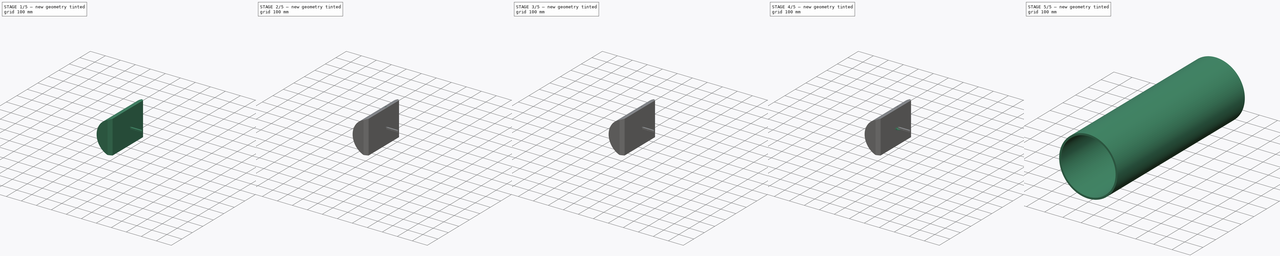
[diagram: build sequence overview — one tinted view per stage of 5, left to right]
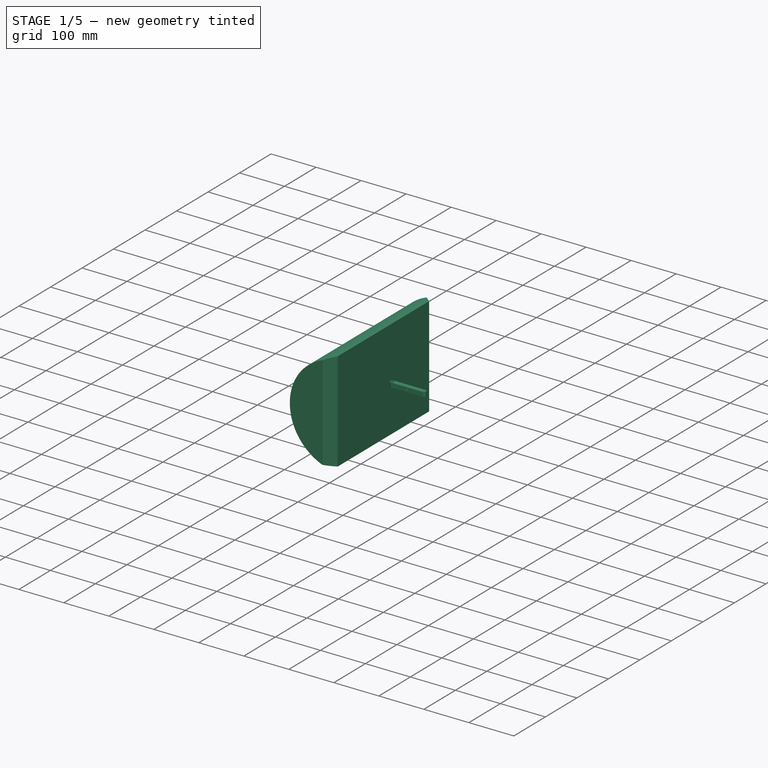
[diagram: stage 1 of 5 — iso view after this stage's code; geometry added in this stage tinted green]
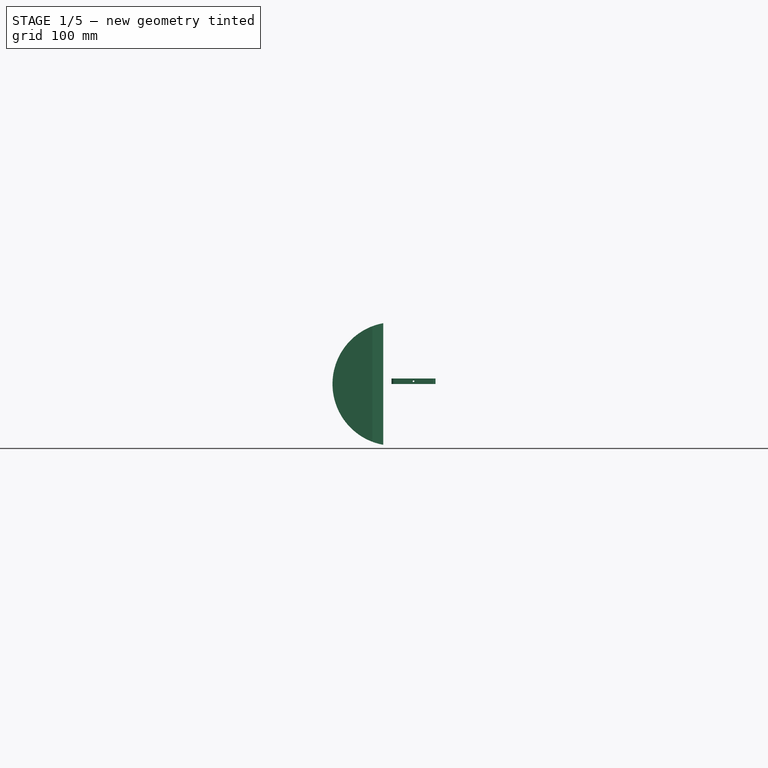
[diagram: stage 1 of 5 — front view after this stage's code; geometry added in this stage tinted green]
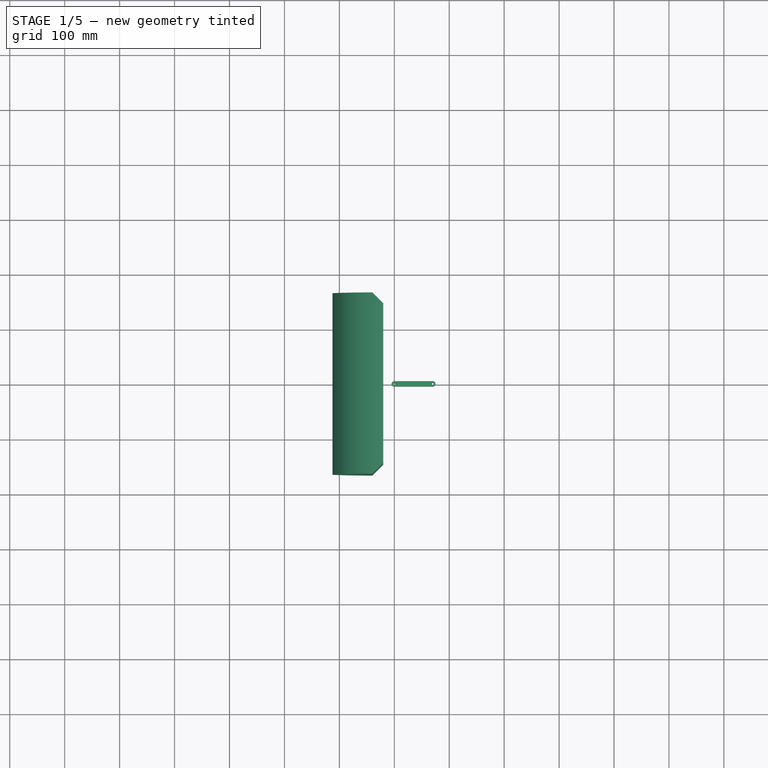
[diagram: stage 1 of 5 — top view after this stage's code; geometry added in this stage tinted green]
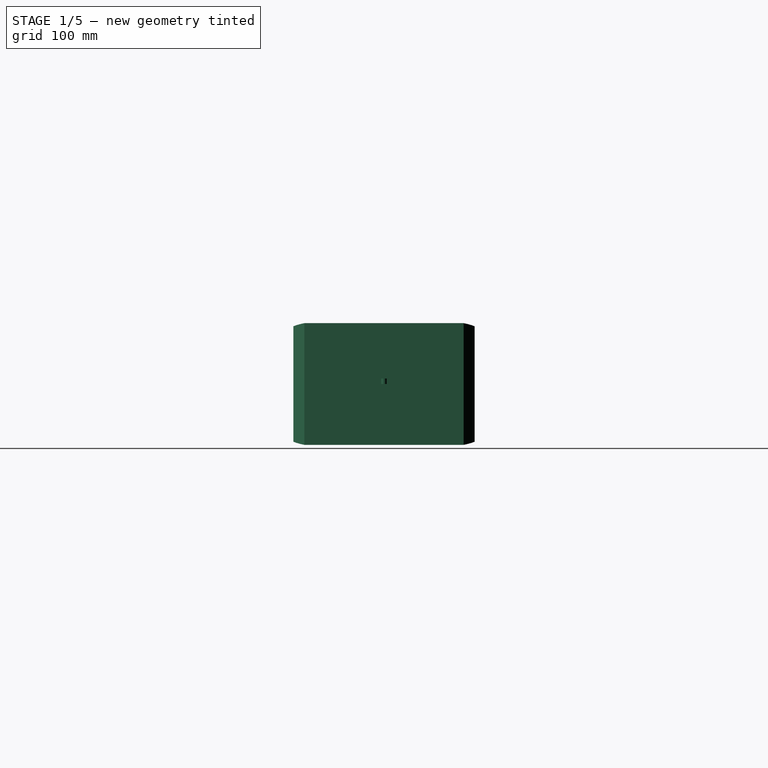
[diagram: stage 1 of 5 — right view after this stage's code; geometry added in this stage tinted green]
FCSTD DOCUMENT  (FreeCAD 2023.114R26244 +5346 (Git))
Label: Prototype_V1
License: All rights reserved
LicenseURL: http://en.wikipedia.org/wiki/All_rights_reserved
objects: App::FeaturePython×31, Part::FeaturePython×23, Sketcher::SketchObject×13, PartDesign::Pocket×9, App::Link×8, PartDesign::Pad×5, PartDesign::Chamfer×4, PartDesign::Body×4, PartDesign::PolarPattern×3, PartDesign::Hole×2, PartDesign::Mirrored×2, App::Part×2, Spreadsheet::Sheet×1, PartDesign::Thickness×1, PartDesign::Line×1, PartDesign::Revolution×1, Part::SubShapeBinder×1, PartDesign::Plane×1
note: 136 computed .brp shape members not serialized (recipe doc carries the construction recipe); baked Part::Feature solids carry a one-line shape summary decoded from their .brp

FEATURE [Sketcher::SketchObject] Sketch
  ArcFitTolerance = 1e-06
  AttachmentSupport = -> [XZ_Plane]
  ExternalBSplineMaxDegree = 5
  ExternalBSplineTolerance = 0.0001
  FullyConstrained = true
  InternalTolerance = 1e-06
  InvalidShape = false
  MakeInternals = true
  MapMode = 5
  Placement = pos=(0,0,0) rot=(1,0,0;1.5708rad)
  Support = -> [XZ_Plane]
  TreeRank = 11
  ValidateShape = true
  expr: Constraints[4] = -0.5 * <<V>>.gap_width
  expr: Constraints[5] = 0.75 * <<V>>.d_pipe * 0.5
  sketch-geometry (2):
    g0: ArcOfCircle CenterX=0 CenterY=0 CenterZ=0 NormalX=0 NormalY=0 NormalZ=1 AngleXU=0 Radius=112.5 StartAngle=1.74952 EndAngle=4.53366
    g1: LineSegment StartX=-20 StartY=110.708 StartZ=0 EndX=-20 EndY=-110.708 EndZ=0
  constraints (6):
    c: Coincident(g0,g-1)
    c: Coincident(g1,g0)
    c: Vertical(g1)
    c: Coincident(g0,g1)
    c: DistanceX(g-2,g0) = -20
    c: Radius(g0) = 112.5
FEATURE [PartDesign::Pad] Pad
  AddSubType = 0
  AlongSketchNormal = false
  AutoTaperInnerAngle = true
  CheckUpToFaceLimits = true
  ClaimChildren = false
  Direction = (0,-1,0)
  Fit = 0
  FitJoin = 0
  InnerFit = 0
  InnerFitJoin = 0
  InvalidShape = false
  Length = 330
  Length2 = 100
  Linearize = true
  Midplane = true
  NewSolid = false
  Profile = -> Sketch
  Refine = true
  Suppress = false
  TaperInnerAngle = 0
  TaperInnerAngleRev = 0
  TreeRank = 12
  Type = 0
  ValidateShape = true
  _ProfileBasedVersion = 1
  expr: Length = 1.1 * <<V>>.d_pipe
FEATURE [PartDesign::Chamfer] Chamfer
  AddSubType = 0
  Angle = 45
  Base = -> Pad [Edge6,Edge5]
  BaseFeature = -> Pad
  ChamferType = 0
  FlipDirection = false
  InvalidShape = false
  NewSolid = false
  Refine = true
  Size = 20
  Size2 = 1
  SupportTransform = false
  Suppress = false
  TreeRank = 13
  ValidateShape = true
FEATURE [PartDesign::Body] Body001  label="Pipe"
  AutoGroupSolids = false
  ClaimAllChildren = false
  ExportMode = 0
  Group = -> [Sketch007,Pad001,Thickness]
  InvalidShape = false
  Origin = -> Origin001
  Tip = -> Thickness
  TreeRank = 39
  ValidateShape = true
  _ExportChildren = -> [Pad001,Thickness]
  _GroupVersion = 1
FEATURE [Sketcher::SketchObject] Sketch008
  ArcFitTolerance = 1e-06
  AttachmentSupport = -> [XY_Plane002]
  ExternalBSplineMaxDegree = 5
  ExternalBSplineTolerance = 0.0001
  FullyConstrained = true
  InternalTolerance = 1e-06
  InvalidShape = false
  MakeInternals = true
  MapMode = 5
  Support = -> [XY_Plane002]
  TreeRank = 53
  ValidateShape = true
  sketch-geometry (6):
    g0: ArcOfCircle CenterX=0 CenterY=0 CenterZ=0 NormalX=0 NormalY=0 NormalZ=1 AngleXU=0 Radius=5 StartAngle=1.5708 EndAngle=4.71239
    g1: ArcOfCircle CenterX=70 CenterY=0 CenterZ=0 NormalX=0 NormalY=0 NormalZ=1 AngleXU=0 Radius=5 StartAngle=4.71239 EndAngle=7.85398
    g2: LineSegment StartX=-9e-16 StartY=-5 StartZ=0 EndX=70 EndY=-5 EndZ=0
    g3: LineSegment StartX=70 StartY=5 StartZ=0 EndX=0 EndY=5 EndZ=0
    g4: Circle CenterX=0 CenterY=0 CenterZ=0 NormalX=0 NormalY=0 NormalZ=1 AngleXU=0 Radius=1.5
    g5: Circle CenterX=70 CenterY=0 CenterZ=0 NormalX=0 NormalY=0 NormalZ=1 AngleXU=0 Radius=1.5
  constraints (13):
    c: Tangent(g0,g2) = -1.5708
    c: Tangent(g2,g1) = -1.5708
    c: Tangent(g1,g3) = -1.5708
    c: Tangent(g3,g0) = -1.5708
    c: Equal(g0,g1)
    c: Coincident(g0,g-1)
    c: PointOnObject(g1,g-1)
    c: Distance(g3) = 70
    c: Radius(g1) = 5
    c: Coincident(g4,g0)
    c: Coincident(g5,g1)
    c: Equal(g5,g4)
    c: Diameter(g4) = 3
FEATURE [PartDesign::Pad] Pad002
  AddSubType = 0
  AlongSketchNormal = false
  AutoTaperInnerAngle = true
  CheckUpToFaceLimits = true
  ClaimChildren = false
  Direction = (0,0,1)
  Fit = 0
  FitJoin = 0
  InnerFit = 0
  InnerFitJoin = 0
  InvalidShape = false
  Length = 10
  Length2 = 100
  Linearize = true
  NewSolid = false
  Profile = -> Sketch008
  Refine = true
  Suppress = false
  TaperInnerAngle = 0
  TaperInnerAngleRev = 0
  TreeRank = 54
  Type = 0
  ValidateShape = true
  _ProfileBasedVersion = 1
FEATURE [PartDesign::Body] Body  label="Main_body"
  AutoGroupSolids = false
  ClaimAllChildren = false
  ExportMode = 0
  Group = -> [Sketch,Pad,Chamfer,Sketch001,Pocket,Pocket001,Sketch003,Hole,Mirrored,Sketch004,Pocket002,Pocket003,Sketch006,Sketch005,Hole001,Sketch012,Pocket006,Chamfer003,PolarPattern002,Mirrored001]
  InvalidShape = false
  Origin = -> Origin
  Tip = -> Mirrored001
  TreeRank = 10
  ValidateShape = true
  _ExportChildren = -> [Pad,Chamfer,Pocket,Pocket001,Hole,Mirrored,Pocket002,Pocket003,Sketch005,Hole001,Pocket006,Chamfer003,PolarPattern002,Mirrored001]
  _GroupVersion = 1
FEATURE [PartDesign::Pocket] Pocket007
  AddSubType = 1
  AutoTaperInnerAngle = true
  BaseFeature = -> Pad002
  CheckUpToFaceLimits = true
  ClaimChildren = false
  Fit = 2
  FitJoin = 0
  InnerFit = 0
  InnerFitJoin = 0
  InvalidShape = false
  Length = 8
  Length2 = 100
  Linearize = true
  NewSolid = false
  Profile = -> Pad002 [Edge15]
  Refine = true
  Suppress = false
  TaperInnerAngle = 0
  TaperInnerAngleRev = 0
  TreeRank = 87
  Type = 0
  ValidateShape = true
  _ProfileBasedVersion = 1
  _Version = 1
FEATURE [Sketcher::SketchObject] Sketch013
  ArcFitTolerance = 1e-06
  AttachmentSupport = -> [Pocket007]
  ExternalBSplineMaxDegree = 5
  ExternalBSplineTolerance = 0.0001
  ExternalGeometry = -> [Pocket007]
  FullyConstrained = true
  InternalTolerance = 1e-06
  InvalidShape = false
  MakeInternals = true
  MapMode = 5
  Placement = pos=(0,5,0) rot=(0,0.707107,0.707107;3.14159rad)
  Support = -> [Pocket007]
  TreeRank = 88
  ValidateShape = true
  sketch-geometry (1):
    g0: Circle CenterX=-35 CenterY=5 CenterZ=0 NormalX=0 NormalY=0 NormalZ=1 AngleXU=0 Radius=1.5
  constraints (2):
    c: Diameter(g0) = 3
    c: Symmetric(g-3,g-1,g0)
FEATURE [PartDesign::Pocket] Pocket008
  AddSubType = 1
  AutoTaperInnerAngle = true
  BaseFeature = -> Pocket007
  CheckUpToFaceLimits = true
  ClaimChildren = false
  Fit = 0
  FitJoin = 0
  InnerFit = 0
  InnerFitJoin = 0
  InvalidShape = false
  Length = 5
  Length2 = 100
  Linearize = true
  NewSolid = false
  Profile = -> Sketch013
  Refine = true
  Suppress = false
  TaperInnerAngle = 0
  TaperInnerAngleRev = 0
  TreeRank = 89
  Type = 1
  ValidateShape = true
  _ProfileBasedVersion = 1
  _Version = 1
FEATURE [PartDesign::Body] Body002  label="Basic Link"
  AutoGroupSolids = false
  ClaimAllChildren = false
  ExportMode = 0
  Group = -> [Sketch008,Pad002,Pocket007,Sketch013,Pocket008]
  InvalidShape = false
  Origin = -> Origin002
  Tip = -> Pocket008
  TreeRank = 175
  ValidateShape = true
  _ExportChildren = -> [Pad002,Pocket007,Pocket008]
  _GroupVersion = 1
FEATURE [App::Part] Part  label="Wheel"
  ClaimAllChildren = false
  ExportMode = 1
  Group = -> [Body003]
  Origin = -> Origin004
  TreeRank = 107
  _ExportChildren = -> [Body003]
  _GroupVersion = 1
FEATURE [App::Part] Part001  label="Halve"
  ClaimAllChildren = false
  ExportMode = 1
  Group = -> [Body]
  Origin = -> Origin005
  TreeRank = 108
  _ExportChildren = -> [Body]
  _GroupVersion = 1
FEATURE [App::Link] Link  label="Link(Basic Link)"
  AutoLinkLabel = true
  AutoPlacement = true
  LinkPlacement = pos=(-112.903,80.78,107.791) rot=(-0.906438,0.263675,0.329917;3.33295rad)
  LinkedObject = -> Body002
  Placement = pos=(-112.903,80.78,107.791) rot=(-0.906438,0.263675,0.329917;3.33295rad)
  SyncGroupVisibility = false
  TreeRank = 111
  _LinkVersion = 1
FEATURE [App::Link] Link001  label="Link001(Wheel)"
  AutoLinkLabel = true
  AutoPlacement = true
  LinkPlacement = pos=(-109.689,80.78,111.621) rot=(0,1,0;0.698132rad)
  LinkedObject = -> Part
  Placement = pos=(-109.689,80.78,111.621) rot=(0,1,0;0.698132rad)
  SyncGroupVisibility = false
  TreeRank = 112
  _LinkVersion = 1
FEATURE [App::Link] Link002  label="Link002(Halve)"
  AutoLinkLabel = true
  AutoPlacement = true
  LinkedObject = -> Part001
  SyncGroupVisibility = false
  TreeRank = 113
  _LinkVersion = 1
FEATURE [App::Link] Link003  label="Link003(Wheel)"
  AutoLinkLabel = true
  AutoPlacement = true
  LinkedObject = -> Part
  SyncGroupVisibility = false
  TreeRank = 114
  _LinkVersion = 1
FEATURE [App::Link] Link004  label="Link004(*Wheel)"
  AutoLinkLabel = true
  AutoPlacement = true
  LinkedObject = -> Link003
  SyncGroupVisibility = false
  TreeRank = 115
  _LinkVersion = 1
FEATURE [App::Link] Link005  label="Link005(Basic Link)"
  AutoLinkLabel = true
  AutoPlacement = true
  LinkPlacement = pos=(-105.167,93.2437,-101.299) rot=(0.265294,-0.631142,-0.728889;1.0462rad)
  LinkedObject = -> Body002
  Placement = pos=(-105.167,93.2437,-101.299) rot=(0.265294,-0.631142,-0.728889;1.0462rad)
  SyncGroupVisibility = false
  TreeRank = 116
  _LinkVersion = 1
FEATURE [App::Link] Link006  label="Link006(*Basic Link)"
  AutoLinkLabel = true
  AutoPlacement = true
  LinkPlacement = pos=(-150.501,-79.9269,-4) rot=(0,0,1;0.416676rad)
  LinkedObject = -> Link005
  Placement = pos=(-150.501,-79.9269,-4) rot=(0,0,1;0.416676rad)
  SyncGroupVisibility = false
  TreeRank = 117
  _LinkVersion = 1
FEATURE [App::Link] Link007  label="Link007(*Basic Link)"
  AutoLinkLabel = true
  AutoPlacement = true
  LinkPlacement = pos=(-163.672,-79.9722,-4.00001) rot=(0,0,1;0.614806rad)
  LinkedObject = -> Link006
  Placement = pos=(-163.672,-79.9722,-4.00001) rot=(0,0,1;0.614806rad)
  SyncGroupVisibility = false
  TreeRank = 118
  _LinkVersion = 1
FEATURE [Part::FeaturePython] Parts  # WARN: FeaturePython — macro-defined, semantics opaque (R4)
  Group = -> [Link,Link001,Link002,Link003,Link004,Link005,Link006,Link007]
  GroupMode = 0
  InvalidShape = false
  TreeRank = 93
  ValidateShape = true
  _LinkVersion = 1
FEATURE [Part::FeaturePython] Assembly  # WARN: FeaturePython — macro-defined, semantics opaque (R4)
  AutoRelax = true
  BuildShape = 0
  Freeze = false
  Group = -> [Constraints,Elements,Parts]
  InvalidShape = false
  TreeRank = 90
  ValidateShape = true
  Verbose = false
  _LinkVersion = 1
  _SolverType = 1
  _Version = 1
FEATURE [App::FeaturePython] Constraints  # WARN: FeaturePython — macro-defined, semantics opaque (R4)
  Group = -> [Constraint,Constraint001,Constraint002,Constraint003,Constraint004,Constraint005,Constraint006,Constraint007,Constraint008,Constraint009]
  TreeRank = 91
  _LinkVersion = 1
  _Version = 1
FEATURE [App::FeaturePython] Elements  # WARN: FeaturePython — macro-defined, semantics opaque (R4)
  Group = -> [_Element,_Element001,_Element002,_Element003,_Element004,_Element005,_Element006,_Element007,_Element008,_Element009,_Element010,_Element011,_Element012,_Element013,_Element014,_Element015,_Element016,_Element017,_Element018,_Element019,_Element020]
  TreeRank = 92
  _LinkVersion = 1
FEATURE [App::FeaturePython] Constraint  label="Locked"  # WARN: FeaturePython — macro-defined, semantics opaque (R4)
  Disabled = false
  Group = -> [ElementLink]
  TreeRank = 119
  _ConstraintType = 0
  _LinkVersion = 1
  _Parent = -> Constraints
FEATURE [App::FeaturePython] ElementLink  label="_Element"  # link proxy (typed FeaturePython)
  LinkTransform = true
  LinkedObject = -> _Element
  TreeRank = 120
  _LinkVersion = 1
  _Parent = -> Constraint
FEATURE [Part::FeaturePython] _Element  # link proxy (typed FeaturePython)
  Detach = false
  InvalidShape = false
  LinkTransform = true
  LinkedObject = -> Link002 [Body.Mirrored001.Face2]
  TreeRank = 121
  ValidateShape = true
  _LinkVersion = 1
  _Parent = -> Elements
FEATURE [App::FeaturePython] Constraint001  label="AxialAlignment"  # WARN: FeaturePython — macro-defined, semantics opaque (R4)
  Angle = 0
  AnglePitch = 0
  AngleRoll = 0
  Disabled = false
  Group = -> [ElementLink001,ElementLink002]
  LockAngle = false
  Multiply = false
  TreeRank = 122
  _ConstraintType = 36
  _LinkVersion = 1
  _Parent = -> Constraints
FEATURE [App::FeaturePython] ElementLink001  label="_Element001"  # link proxy (typed FeaturePython)
  LinkTransform = true
  LinkedObject = -> _Element001
  TreeRank = 123
  _LinkVersion = 1
  _Parent = -> Constraint001
FEATURE [Part::FeaturePython] _Element001  # link proxy (typed FeaturePython)
  Detach = false
  InvalidShape = false
  LinkTransform = true
  LinkedObject = -> Link [Pocket008.Edge15]
  TreeRank = 124
  ValidateShape = true
  _LinkVersion = 1
  _Parent = -> Elements
FEATURE [App::FeaturePython] ElementLink002  label="_Element002"  # link proxy (typed FeaturePython)
  LinkTransform = true
  LinkedObject = -> _Element002
  TreeRank = 125
  _LinkVersion = 1
  _Parent = -> Constraint001
FEATURE [Part::FeaturePython] _Element002  # link proxy (typed FeaturePython)
  Detach = false
  InvalidShape = false
  LinkTransform = true
  LinkedObject = -> Link002 [Body.Mirrored001.Edge91]
  TreeRank = 126
  ValidateShape = true
  _LinkVersion = 1
  _Parent = -> Elements
FEATURE [App::FeaturePython] Constraint002  label="AxialAlignment001"  # WARN: FeaturePython — macro-defined, semantics opaque (R4)
  Angle = 0
  AnglePitch = 0
  AngleRoll = 0
  Disabled = false
  Group = -> [ElementLink003,ElementLink004]
  LockAngle = false
  Multiply = false
  TreeRank = 127
  _ConstraintType = 36
  _LinkVersion = 1
  _Parent = -> Constraints
FEATURE [App::FeaturePython] ElementLink003  label="_Element003"  # link proxy (typed FeaturePython)
  LinkTransform = true
  LinkedObject = -> _Element003
  TreeRank = 128
  _LinkVersion = 1
  _Parent = -> Constraint002
FEATURE [Part::FeaturePython] _Element003  # link proxy (typed FeaturePython)
  Detach = false
  InvalidShape = false
  LinkTransform = true
  LinkedObject = -> Link001 [Body003.Chamfer002.Edge133]
  TreeRank = 129
  ValidateShape = true
  _LinkVersion = 1
  _Parent = -> Elements
FEATURE [App::FeaturePython] ElementLink004  label="_Element004"  # link proxy (typed FeaturePython)
  LinkTransform = true
  LinkedObject = -> _Element004
  TreeRank = 130
  _LinkVersion = 1
  _Parent = -> Constraint002
FEATURE [Part::FeaturePython] _Element004  # link proxy (typed FeaturePython)
  Detach = false
  InvalidShape = false
  LinkTransform = true
  LinkedObject = -> Link [Pocket008.Edge17]
  TreeRank = 131
  ValidateShape = true
  _LinkVersion = 1
  _Parent = -> Elements
FEATURE [App::FeaturePython] Constraint003  label="PointInPlane"  # WARN: FeaturePython — macro-defined, semantics opaque (R4)
  Disabled = false
  Group = -> [ElementLink005,ElementLink006]
  TreeRank = 132
  _ConstraintType = 3
  _LinkVersion = 1
  _Parent = -> Constraints
FEATURE [App::FeaturePython] ElementLink005  label="_Element005"  # link proxy (typed FeaturePython)
  LinkTransform = true
  LinkedObject = -> _Element005
  TreeRank = 133
  _LinkVersion = 1
  _Parent = -> Constraint003
FEATURE [Part::FeaturePython] _Element005  # link proxy (typed FeaturePython)
  Detach = false
  InvalidShape = false
  LinkTransform = true
  LinkedObject = -> Link002 [Body.Mirrored001.Vertex23]
  TreeRank = 134
  ValidateShape = true
  _LinkVersion = 1
  _Parent = -> Elements
FEATURE [App::FeaturePython] ElementLink006  label="_Element006"  # link proxy (typed FeaturePython)
  LinkTransform = true
  LinkedObject = -> _Element006
  TreeRank = 135
  _LinkVersion = 1
  _Parent = -> Constraint003
FEATURE [Part::FeaturePython] _Element006  # link proxy (typed FeaturePython)
  Detach = false
  InvalidShape = false
  LinkTransform = true
  LinkedObject = -> Link [Pocket008.Face5]
  TreeRank = 136
  ValidateShape = true
  _LinkVersion = 1
  _Parent = -> Elements
FEATURE [App::FeaturePython] Constraint004  label="PointInPlane001"  # WARN: FeaturePython — macro-defined, semantics opaque (R4)
  Disabled = false
  Group = -> [ElementLink007,ElementLink008]
  TreeRank = 137
  _ConstraintType = 3
  _LinkVersion = 1
  _Parent = -> Constraints
FEATURE [App::FeaturePython] ElementLink007  label="_Element007"  # link proxy (typed FeaturePython)
  LinkTransform = true
  LinkedObject = -> _Element007
  TreeRank = 138
  _LinkVersion = 1
  _Parent = -> Constraint004
FEATURE [Part::FeaturePython] _Element007  # link proxy (typed FeaturePython)
  Detach = false
  InvalidShape = false
  LinkTransform = true
  LinkedObject = -> Link [Pocket008.Vertex1]
  TreeRank = 139
  ValidateShape = true
  _LinkVersion = 1
  _Parent = -> Elements
FEATURE [App::FeaturePython] ElementLink008  label="_Element008"  # link proxy (typed FeaturePython)
  LinkTransform = true
  LinkedObject = -> _Element008
  TreeRank = 140
  _LinkVersion = 1
  _Parent = -> Constraint004
FEATURE [Part::FeaturePython] _Element008  # link proxy (typed FeaturePython)
  Detach = false
  InvalidShape = false
  LinkTransform = true
  LinkedObject = -> Link001 [Body003.Chamfer002.Face47]
  TreeRank = 141
  ValidateShape = true
  _LinkVersion = 1
  _Parent = -> Elements
FEATURE [App::FeaturePython] Constraint005  label="AxialAlignment002"  # WARN: FeaturePython — macro-defined, semantics opaque (R4)
  Angle = 0
  AnglePitch = 0
  AngleRoll = 0
  Disabled = false
  Group = -> [ElementLink009,ElementLink010]
  LockAngle = false
  Multiply = false
  TreeRank = 142
  _ConstraintType = 36
  _LinkVersion = 1
  _Parent = -> Constraints
FEATURE [App::FeaturePython] ElementLink009  label="_Element009"  # link proxy (typed FeaturePython)
  LinkTransform = true
  LinkedObject = -> _Element009
  TreeRank = 143
  _LinkVersion = 1
  _Parent = -> Constraint005
FEATURE [Part::FeaturePython] _Element009  # link proxy (typed FeaturePython)
  Detach = false
  InvalidShape = false
  LinkTransform = true
  LinkedObject = -> Link002 [Body.Mirrored001.Edge101]
  TreeRank = 144
  ValidateShape = true
  _LinkVersion = 1
  _Parent = -> Elements
FEATURE [App::FeaturePython] ElementLink010  label="_Element010"  # link proxy (typed FeaturePython)
  LinkTransform = true
  LinkedObject = -> _Element010
  TreeRank = 145
  _LinkVersion = 1
  _Parent = -> Constraint005
FEATURE [Part::FeaturePython] _Element010  # link proxy (typed FeaturePython)
  Detach = false
  InvalidShape = false
  LinkTransform = true
  LinkedObject = -> Link005 [Pocket008.Edge18]
  TreeRank = 146
  ValidateShape = true
  _LinkVersion = 1
  _Parent = -> Elements
FEATURE [App::FeaturePython] Constraint006  label="PointInPlane002"  # WARN: FeaturePython — macro-defined, semantics opaque (R4)
  Disabled = false
  Group = -> [ElementLink011,ElementLink012]
  TreeRank = 147
  _ConstraintType = 3
  _LinkVersion = 1
  _Parent = -> Constraints
FEATURE [App::FeaturePython] ElementLink011  label="_Element011"  # link proxy (typed FeaturePython)
  LinkTransform = true
  LinkedObject = -> _Element011
  TreeRank = 148
  _LinkVersion = 1
  _Parent = -> Constraint006
FEATURE [Part::FeaturePython] _Element011  # link proxy (typed FeaturePython)
  Detach = false
  InvalidShape = false
  LinkTransform = true
  LinkedObject = -> Link002 [Body.Mirrored001.Vertex32]
  TreeRank = 149
  ValidateShape = true
  _LinkVersion = 1
  _Parent = -> Elements
FEATURE [App::FeaturePython] ElementLink012  label="_Element012"  # link proxy (typed FeaturePython)
  LinkTransform = true
  LinkedObject = -> _Element012
  TreeRank = 150
  _LinkVersion = 1
  _Parent = -> Constraint006
FEATURE [Part::FeaturePython] _Element012  # link proxy (typed FeaturePython)
  Detach = false
  InvalidShape = false
  LinkTransform = true
  LinkedObject = -> Link005 [Pocket008.Face5]
  TreeRank = 151
  ValidateShape = true
  _LinkVersion = 1
  _Parent = -> Elements
FEATURE [App::FeaturePython] Constraint007  label="AxialAlignment003"  # WARN: FeaturePython — macro-defined, semantics opaque (R4)
  Angle = 0
  AnglePitch = 0
  AngleRoll = 0
  Disabled = false
  Group = -> [ElementLink013,ElementLink014]
  LockAngle = false
  Multiply = false
  TreeRank = 152
  _ConstraintType = 36
  _LinkVersion = 1
  _Parent = -> Constraints
FEATURE [App::FeaturePython] ElementLink013  label="_Element013"  # link proxy (typed FeaturePython)
  LinkTransform = true
  LinkedObject = -> _Element013
  TreeRank = 153
  _LinkVersion = 1
  _Parent = -> Constraint007
FEATURE [Part::FeaturePython] _Element013  # link proxy (typed FeaturePython)
  Detach = false
  InvalidShape = false
  LinkTransform = true
  LinkedObject = -> Link006 [Pocket008.Edge15]
  TreeRank = 154
  ValidateShape = true
  _LinkVersion = 1
  _Parent = -> Elements
FEATURE [App::FeaturePython] ElementLink014  label="_Element014"  # link proxy (typed FeaturePython)
  LinkTransform = true
  LinkedObject = -> _Element014
  TreeRank = 155
  _LinkVersion = 1
  _Parent = -> Constraint007
FEATURE [Part::FeaturePython] _Element014  # link proxy (typed FeaturePython)
  Detach = false
  InvalidShape = false
  LinkTransform = true
  LinkedObject = -> Link002 [Body.Mirrored001.Edge65]
  TreeRank = 156
  ValidateShape = true
  _LinkVersion = 1
  _Parent = -> Elements
FEATURE [App::FeaturePython] Constraint008  label="PointInPlane003"  # WARN: FeaturePython — macro-defined, semantics opaque (R4)
  Disabled = false
  Group = -> [ElementLink015,ElementLink016]
  TreeRank = 157
  _ConstraintType = 3
  _LinkVersion = 1
  _Parent = -> Constraints
FEATURE [App::FeaturePython] ElementLink015  label="_Element015"  # link proxy (typed FeaturePython)
  LinkTransform = true
  LinkedObject = -> _Element015
  TreeRank = 158
  _LinkVersion = 1
  _Parent = -> Constraint008
FEATURE [Part::FeaturePython] _Element015  # link proxy (typed FeaturePython)
  Detach = false
  InvalidShape = false
  LinkTransform = true
  LinkedObject = -> Link002 [Body.Mirrored001.Vertex15]
  TreeRank = 159
  ValidateShape = true
  _LinkVersion = 1
  _Parent = -> Elements
FEATURE [App::FeaturePython] ElementLink016  label="_Element016"  # link proxy (typed FeaturePython)
  LinkTransform = true
  LinkedObject = -> _Element016
  TreeRank = 160
  _LinkVersion = 1
  _Parent = -> Constraint008
FEATURE [Part::FeaturePython] _Element016  # link proxy (typed FeaturePython)
  Detach = false
  InvalidShape = false
  LinkTransform = true
  LinkedObject = -> Link006 [Pocket008.Edge17]
  TreeRank = 161
  ValidateShape = true
  _LinkVersion = 1
  _Parent = -> Elements
FEATURE [Part::FeaturePython] _Element017  # link proxy (typed FeaturePython)
  Detach = false
  InvalidShape = false
  LinkTransform = true
  LinkedObject = -> Link002 [Body.Mirrored001.Edge53]
  TreeRank = 164
  ValidateShape = true
  _LinkVersion = 1
  _Parent = -> Elements
FEATURE [Part::FeaturePython] _Element018  # link proxy (typed FeaturePython)
  Detach = false
  InvalidShape = false
  LinkTransform = true
  LinkedObject = -> Link007 [Pocket008.Edge15]
  TreeRank = 166
  ValidateShape = true
  _LinkVersion = 1
  _Parent = -> Elements
FEATURE [Part::FeaturePython] _Element019  # link proxy (typed FeaturePython)
  Detach = false
  InvalidShape = false
  LinkTransform = true
  LinkedObject = -> Link007 [Pocket008.Edge17]
  TreeRank = 170
  ValidateShape = true
  _LinkVersion = 1
  _Parent = -> Elements
FEATURE [App::FeaturePython] Constraint009  label="AxialAlignment004"  # WARN: FeaturePython — macro-defined, semantics opaque (R4)
  Angle = 0
  AnglePitch = 0
  AngleRoll = 0
  Disabled = false
  Group = -> [ElementLink017,ElementLink018]
  LockAngle = false
  Multiply = false
  TreeRank = 171
  _ConstraintType = 36
  _LinkVersion = 1
  _Parent = -> Constraints
FEATURE [App::FeaturePython] ElementLink017  label="_Element020"  # link proxy (typed FeaturePython)
  LinkTransform = true
  LinkedObject = -> _Element020
  TreeRank = 172
  _LinkVersion = 1
  _Parent = -> Constraint009
FEATURE [Part::FeaturePython] _Element020  # link proxy (typed FeaturePython)
  Detach = false
  InvalidShape = false
  LinkTransform = true
  LinkedObject = -> Link002 [Body.Mirrored001.Edge66]
  TreeRank = 173
  ValidateShape = true
  _LinkVersion = 1
  _Parent = -> Elements
FEATURE [App::FeaturePython] ElementLink018  label="_Element018"  # link proxy (typed FeaturePython)
  LinkTransform = true
  LinkedObject = -> _Element018
  TreeRank = 174
  _LinkVersion = 1
  _Parent = -> Constraint009
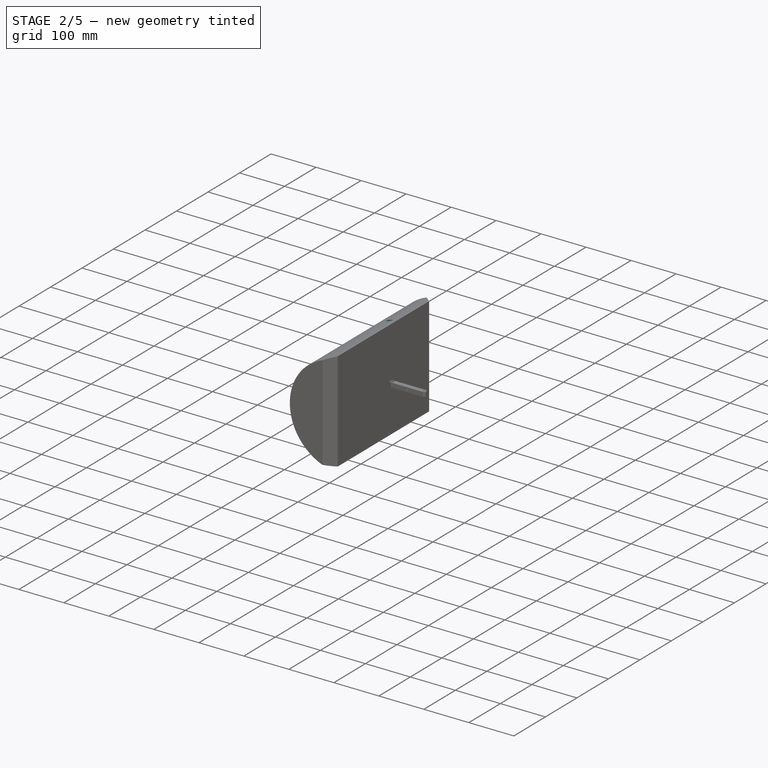
[diagram: stage 2 of 5 — iso view after this stage's code; geometry added in this stage tinted green]
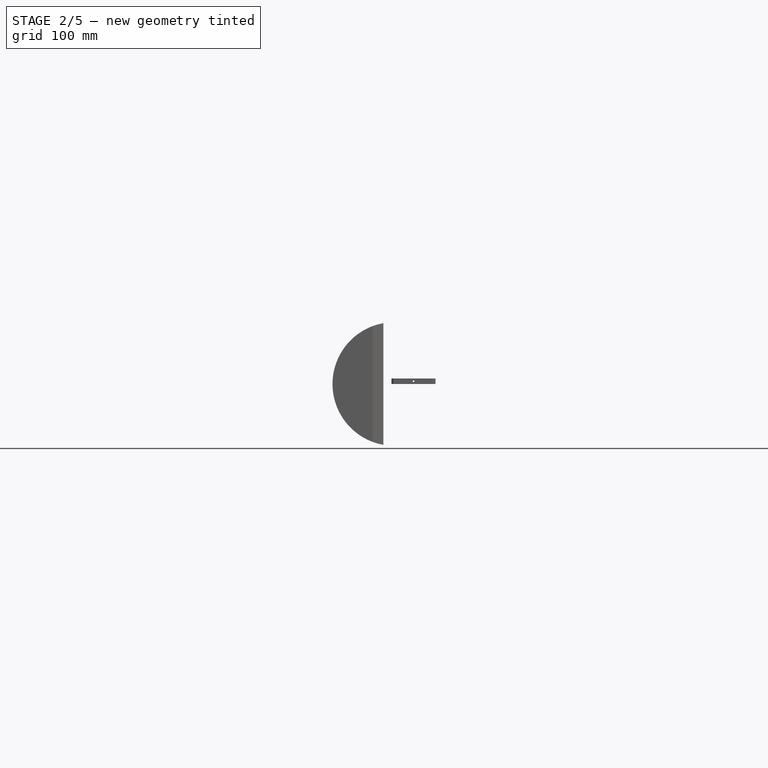
[diagram: stage 2 of 5 — front view after this stage's code; geometry added in this stage tinted green]
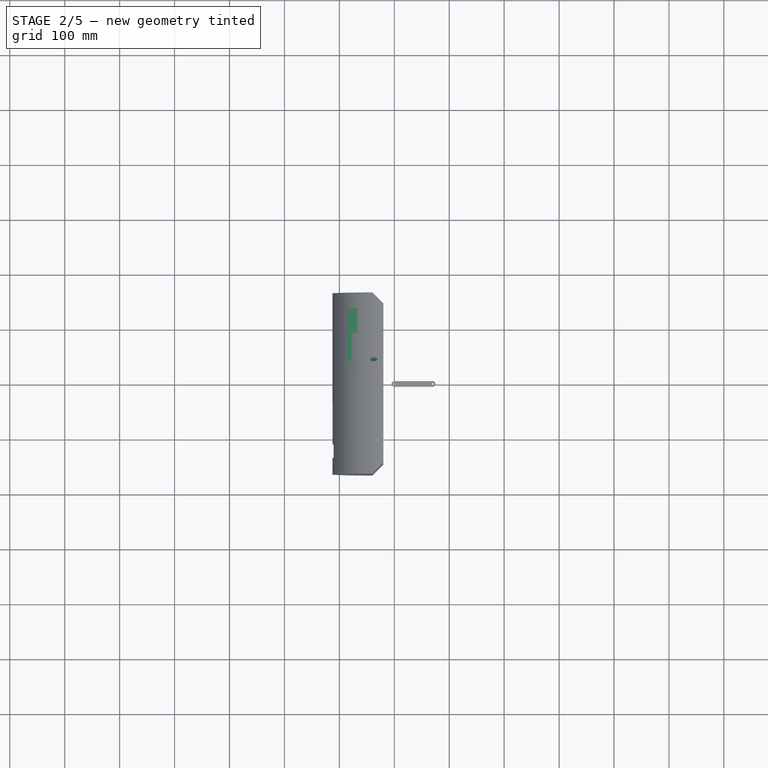
[diagram: stage 2 of 5 — top view after this stage's code; geometry added in this stage tinted green]
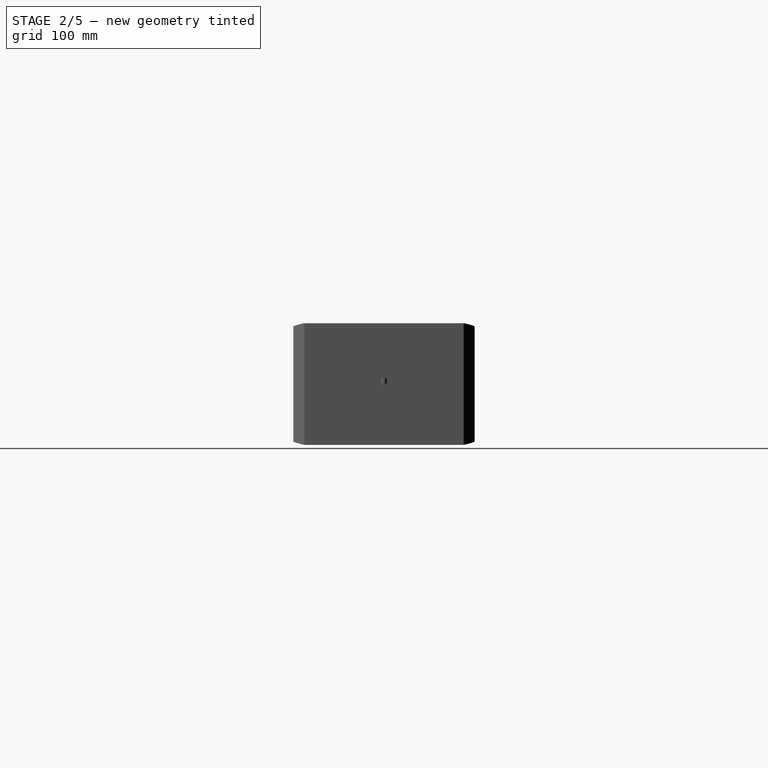
[diagram: stage 2 of 5 — right view after this stage's code; geometry added in this stage tinted green]
FEATURE [Spreadsheet::Sheet] Spreadsheet  label="V"
  PythonMode = false
  ShowCells = 0
  TreeRank = 14
  cells = A1=d_pipe; B1(d_pipe)=300; A2=d_wheel; B2(d_wheel)=40; A3=a_extrusion; B3(a_extrusion)=10; A4=gap_width; B4(gap_width)=40; A5=arm_length; B5(arm_length)=70; C5=approx 0.35*d_pipe
FEATURE [Sketcher::SketchObject] Sketch001
  ArcFitTolerance = 1e-06
  AttachmentOffset = pos=(0,0,0) rot=(0,1,0;0.698132rad)
  AttachmentSupport = -> [XY_Plane]
  ExternalBSplineMaxDegree = 5
  ExternalBSplineTolerance = 0.0001
  ExternalGeometry = -> [Chamfer]
  FullyConstrained = true
  InternalTolerance = 1e-06
  InvalidShape = false
  MakeInternals = true
  MapMode = 5
  Placement = pos=(0,0,0) rot=(0,1,0;0.698132rad)
  Support = -> [XY_Plane]
  TreeRank = 15
  ValidateShape = true
  expr: Constraints[10] = <<V>>.arm_length
  expr: Constraints[13] = <<V>>.d_wheel / 2 + 2
  expr: Constraints[15] = <<V>>.a_extrusion / 2 + 10
  expr: Constraints[1] = <<V>>.a_extrusion / 2 + 2
  expr: Constraints[2] = <<V>>.d_wheel / 2 + 2
  expr: Constraints[3] = <<V>>.a_extrusion / 2 + 2
  sketch-geometry (7):
    g0: LineSegment StartX=-89.7212 StartY=42.6625 StartZ=0 EndX=-85.72 EndY=91.6427 EndZ=0
    g1: ArcOfCircle CenterX=-90.9986 CenterY=113 CenterZ=0 NormalX=0 NormalY=0 NormalZ=1 AngleXU=0 Radius=22 StartAngle=4.95469 EndAngle=7.85398
    g2: LineSegment StartX=-90.9986 StartY=135 StartZ=0 EndX=-112.999 EndY=135 EndZ=0
    g3: ArcOfCircle CenterX=-96.698 CenterY=43.2324 CenterZ=0 NormalX=0 NormalY=0 NormalZ=1 AngleXU=0 Radius=7 StartAngle=4.45059 EndAngle=6.20168
    g4: LineSegment StartX=-112.999 StartY=135 StartZ=0 EndX=-112.999 EndY=40.3532 EndZ=0
    g5: LineSegment StartX=-112.999 StartY=40.3532 StartZ=0 EndX=-98.5097 EndY=36.4709 EndZ=0
    g6: LineSegment StartX=-85.72 StartY=91.6427 StartZ=0 EndX=-112.999 EndY=91.6427 EndZ=0
  constraints (21):
    c: Coincident(g1,g0)
    c: Distance(g1,g0) = 7
    c: Radius(g1) = 22
    c: Radius(g3) = 7
    c: Coincident(g2,g4)
    c: Coincident(g4,g5)
    c: Coincident(g5,g3)
    c: Tangent(g5,g3,g3) = -1.5708
    c: Tangent(g0,g3) = -1.5708
    c: Tangent(g1,g2) = -1.5708
    c: Distance(g1,g3) = 70
    c: Vertical(g4)
    c: Horizontal(g2)
    c: Distance(g2) = 22
    c: Angle(g5,g-1) = 0.261799
    c: Distance(g5) = 15
    c: Coincident(g6,g0)
    c: PointOnObject(g6,g4)
    c: Horizontal(g6)
    c: DistanceX(g2,g-3) = 0.5
    c: DistanceY(g2,g-3) = 30
FEATURE [PartDesign::Pocket] Pocket
  AddSubType = 1
  AutoTaperInnerAngle = true
  BaseFeature = -> Chamfer
  CheckUpToFaceLimits = true
  ClaimChildren = false
  Fit = 0
  FitJoin = 0
  InnerFit = 0
  InnerFitJoin = 0
  InvalidShape = false
  Length = 12
  Length2 = 100
  Linearize = true
  NewSolid = false
  Profile = -> Sketch001 [InternalFace2]
  Refine = true
  Reversed = true
  Suppress = false
  TaperInnerAngle = 0
  TaperInnerAngleRev = 0
  TreeRank = 17
  Type = 0
  ValidateShape = true
  _ProfileBasedVersion = 1
  _Version = 1
  expr: Length = <<V>>.a_extrusion + 2
FEATURE [PartDesign::Pocket] Pocket001
  AddSubType = 1
  AutoTaperInnerAngle = true
  BaseFeature = -> Pocket
  CheckUpToFaceLimits = true
  ClaimChildren = false
  Fit = 0
  FitJoin = 0
  InnerFit = 0
  InnerFitJoin = 0
  InvalidShape = false
  Length = 25
  Length2 = 100
  Linearize = true
  NewSolid = false
  Profile = -> Sketch001 [InternalFace1]
  Refine = true
  Reversed = true
  Suppress = false
  TaperInnerAngle = 0
  TaperInnerAngleRev = 0
  TreeRank = 18
  Type = 0
  ValidateShape = true
  _ProfileBasedVersion = 1
  _Version = 1
  expr: Length = <<V>>.a_extrusion * 2.5
FEATURE [Sketcher::SketchObject] Sketch003
  ArcFitTolerance = 1e-06
  AttachmentOffset = pos=(0,0,100) rot=(0,0,1;0rad)
  AttachmentSupport = -> [Sketch001]
  ExternalBSplineMaxDegree = 5
  ExternalBSplineTolerance = 0.0001
  ExternalGeometry = -> [Sketch001]
  FullyConstrained = true
  InternalTolerance = 1e-06
  InvalidShape = false
  MakeInternals = true
  MapMode = 5
  Placement = pos=(64.2788,1.1e-15,76.6044) rot=(0,1,0;0.698132rad)
  Support = -> [Sketch001]
  TreeRank = 20
  ValidateShape = true
  sketch-geometry (1):
    g0: Circle CenterX=-96.698 CenterY=43.2324 CenterZ=0 NormalX=0 NormalY=0 NormalZ=1 AngleXU=0 Radius=1.5
  constraints (2):
    c: Coincident(g0,g-3)
    c: Diameter(g0) = 3
FEATURE [PartDesign::Hole] Hole
  AddSubType = 1
  BaseFeature = -> Pocket001
  ClaimChildren = false
  CustomThreadClearance = 0
  Depth = 105
  DepthType = 0
  Diameter = 3.2
  DrillForDepth = false
  DrillPoint = 1
  DrillPointAngle = 118
  Fit = 0
  FitJoin = 0
  HoleCutCountersinkAngle = 90
  HoleCutCustomValues = false
  HoleCutDepth = 85
  HoleCutDiameter = 7
  HoleCutType = 1
  InnerFit = 0
  InnerFitJoin = 0
  InvalidShape = false
  Linearize = true
  ModelThread = false
  NewSolid = false
  Profile = -> Sketch003 [Edge1]
  Refine = true
  Suppress = false
  Tapered = false
  TaperedAngle = 90
  ThreadClass = 0
  ThreadDepth = 105
  ThreadDepthType = 0
  ThreadDirection = 0
  ThreadFit = 1
  ThreadSize = 9
  ThreadType = 1
  Threaded = false
  TreeRank = 21
  UseCustomThreadClearance = false
  ValidateShape = true
  _ProfileBasedVersion = 1
  expr: HoleCutDepth = 95 - <<V>>.a_extrusion
FEATURE [PartDesign::Mirrored] Mirrored
  AddSubType = 0
  BaseFeature = -> Hole
  CopyShape = false
  InvalidShape = false
  MirrorPlane = -> XY_Plane
  NewSolid = false
  OriginalSubs = -> [Hole,Pocket001,Pocket]
  Originals = -> [Hole,Pocket001,Pocket]
  ParallelTransform = true
  Refine = true
  SubTransform = true
  Suppress = false
  TreeRank = 22
  ValidateShape = true
  _Version = 3
FEATURE [Sketcher::SketchObject] Sketch004
  ArcFitTolerance = 1e-06
  AttachmentSupport = -> [XY_Plane]
  ExternalBSplineMaxDegree = 5
  ExternalBSplineTolerance = 0.0001
  ExternalGeometry = -> [Mirrored]
  FullyConstrained = true
  InternalTolerance = 1e-06
  InvalidShape = false
  MakeInternals = true
  MapMode = 5
  Support = -> [XY_Plane]
  TreeRank = 23
  ValidateShape = true
  expr: Constraints[22] = <<V>>.a_extrusion * 0.5 + 1
  expr: Constraints[26] = 25
  sketch-geometry (10):
    g0: ArcOfCircle CenterX=-106.49 CenterY=-39.5962 CenterZ=0 NormalX=0 NormalY=0 NormalZ=1 AngleXU=0 Radius=6 StartAngle=1.03038 EndAngle=1.5708
    g1: ArcOfCircle CenterX=-86.4901 CenterY=-51.5962 CenterZ=0 NormalX=0 NormalY=0 NormalZ=1 AngleXU=0 Radius=6 StartAngle=0.15173 EndAngle=1.03038
    g2: LineSegment StartX=-103.403 StartY=-34.4513 StartZ=0 EndX=-83.4031 EndY=-46.4513 EndZ=0
    g3: LineSegment StartX=-71.4901 StartY=-110 StartZ=0 EndX=-113.49 EndY=-110 EndZ=0
    g4: LineSegment StartX=-113.49 StartY=-110 StartZ=0 EndX=-113.49 EndY=-135 EndZ=0
    g5: LineSegment StartX=-113.49 StartY=-135 StartZ=0 EndX=-71.4901 EndY=-135 EndZ=0
    g6: LineSegment StartX=-71.4901 StartY=-135 StartZ=0 EndX=-71.4901 EndY=-110 EndZ=0
    g7: LineSegment StartX=-106.49 StartY=-33.5962 StartZ=0 EndX=-113.49 EndY=-33.5962 EndZ=0
    g8: LineSegment StartX=-80.559 StartY=-50.6893 StartZ=0 EndX=-71.4901 EndY=-110 EndZ=0
    g9: LineSegment StartX=-113.49 StartY=-33.5962 StartZ=0 EndX=-113.49 EndY=-110 EndZ=0
  constraints (31):
    c: Equal(g1,g0)
    c: DistanceY(g1,g0) = 12
    c: DistanceX(g0,g1) = 20
    c: Coincident(g2,g0)
    c: Coincident(g2,g1)
    c: Coincident(g3,g4)
    c: Coincident(g4,g5)
    c: Coincident(g5,g6)
    c: Coincident(g6,g3)
    c: Horizontal(g3)
    c: Horizontal(g5)
    c: Vertical(g4)
    c: Vertical(g6)
    c: Distance(g5) = 42
    c: DistanceX(g-3,g4) = -1
    c: Coincident(g7,g0)
    c: Vertical(g7,g3)
    c: Horizontal(g7)
    c: Tangent(g7,g0,g0) = -1.5708
    c: Distance(g7) = 7
    c: Tangent(g2,g0,g0) = 1.5708
    c: Tangent(g1,g2,g1) = 1.5708
    c: Radius(g1) = 6
    c: Coincident(g8,g1)
    c: Distance(g8) = 60
    c: Tangent(g1,g8,g1) = 1.5708
    c: Distance(g6) = 25
    c: Coincident(g8,g3)
    c: Coincident(g9,g7)
    c: Coincident(g9,g3)
    c: Distance(g-4,g5) = 30
FEATURE [PartDesign::Pocket] Pocket002
  AddSubType = 1
  AutoTaperInnerAngle = true
  BaseFeature = -> Mirrored
  CheckUpToFaceLimits = true
  ClaimChildren = false
  Fit = 0
  FitJoin = 0
  InnerFit = 0
  InnerFitJoin = 0
  InvalidShape = false
  Length = 12
  Length2 = 100
  Linearize = true
  Midplane = true
  NewSolid = false
  Profile = -> Sketch004 [InternalFace1]
  Refine = true
  Suppress = false
  TaperInnerAngle = 0
  TaperInnerAngleRev = 0
  TreeRank = 24
  Type = 0
  ValidateShape = true
  _ProfileBasedVersion = 1
  _Version = 1
  expr: Length = <<V>>.a_extrusion + 2
FEATURE [Sketcher::SketchObject] Sketch005
  ArcFitTolerance = 1e-06
  AttachmentSupport = -> [XY_Plane]
  ExternalBSplineMaxDegree = 5
  ExternalBSplineTolerance = 0.0001
  FullyConstrained = false
  InternalTolerance = 1e-06
  InvalidShape = false
  MakeInternals = true
  MapMode = 5
  Support = -> [XY_Plane]
  TreeRank = 26
  ValidateShape = true
  sketch-geometry (12):
    g0: ArcOfCircle CenterX=50.4849 CenterY=-51.0132 CenterZ=0 NormalX=0 NormalY=0 NormalZ=1 AngleXU=0 Radius=5 StartAngle=3.59219 EndAngle=6.73378
    g1: ArcOfCircle CenterX=20 CenterY=12 CenterZ=0 NormalX=0 NormalY=0 NormalZ=1 AngleXU=0 Radius=5 StartAngle=0.450593 EndAngle=3.59219
    g2: LineSegment StartX=54.9859 StartY=-48.8357 StartZ=0 EndX=24.5009 EndY=14.1775 EndZ=0
    g3: LineSegment StartX=15.4991 StartY=9.8225 StartZ=0 EndX=45.984 EndY=-53.1907 EndZ=0
    g4: ArcOfCircle CenterX=30.4849 CenterY=-63.0132 CenterZ=0 NormalX=0 NormalY=0 NormalZ=1 AngleXU=0 Radius=5 StartAngle=3.59219 EndAngle=6.73378
    g5: ArcOfCircle CenterX=0 CenterY=0 CenterZ=0 NormalX=0 NormalY=0 NormalZ=1 AngleXU=0 Radius=5 StartAngle=0.450593 EndAngle=3.59219
    g6: LineSegment StartX=34.9859 StartY=-60.8357 StartZ=0 EndX=4.50095 EndY=2.1775 EndZ=0
    g7: LineSegment StartX=-4.50095 StartY=-2.1775 StartZ=0 EndX=25.984 EndY=-65.1907 EndZ=0
    g8: ArcOfCircle CenterX=41.492 CenterY=111.619 CenterZ=0 NormalX=0 NormalY=0 NormalZ=1 AngleXU=0 Radius=7.45731 StartAngle=4.67486 EndAngle=7.81645
    g9: ArcOfCircle CenterX=13.3276 CenterY=112.676 CenterZ=0 NormalX=0 NormalY=0 NormalZ=1 AngleXU=0 Radius=7.45731 StartAngle=1.53327 EndAngle=4.67486
    g10: LineSegment StartX=41.7718 StartY=119.071 StartZ=0 EndX=13.6074 EndY=120.128 EndZ=0
    g11: LineSegment StartX=13.0478 StartY=105.224 StartZ=0 EndX=41.2122 EndY=104.167 EndZ=0
  constraints (23):
    c: Tangent(g0,g2) = -1.5708
    c: Tangent(g2,g1) = -1.5708
    c: Tangent(g1,g3) = -1.5708
    c: Tangent(g3,g0) = -1.5708
    c: Equal(g0,g1)
    c: Radius(g0) = 5
    c: Distance(g3) = 70
    c: Tangent(g4,g6) = -1.5708
    c: Tangent(g6,g5) = -1.5708
    c: Tangent(g5,g7) = -1.5708
    c: Tangent(g7,g4) = -1.5708
    c: Equal(g4,g5)
    c: Radius(g4) = 5
    c: Parallel(g7,g2)
    c: Distance(g7) = 70
    c: DistanceX(g5,g1) = 20
    c: DistanceY(g5,g1) = 12
    c: Coincident(g5,g-1)
    c: Tangent(g8,g10) = -1.5708
    c: Tangent(g10,g9) = -1.5708
    c: Tangent(g9,g11) = -1.5708
    c: Tangent(g11,g8) = -1.5708
    c: Equal(g8,g9)
FEATURE [PartDesign::Pocket] Pocket003
  AddSubType = 1
  AutoTaperInnerAngle = true
  BaseFeature = -> Pocket002
  CheckUpToFaceLimits = true
  ClaimChildren = false
  Fit = 0
  FitJoin = 0
  InnerFit = 0
  InnerFitJoin = 0
  InvalidShape = false
  Length = 42
  Length2 = 100
  Linearize = true
  Midplane = true
  NewSolid = false
  Profile = -> Sketch004 [InternalFace2]
  Refine = true
  Suppress = false
  TaperInnerAngle = 0
  TaperInnerAngleRev = 0
  TreeRank = 27
  Type = 0
  ValidateShape = true
  _ProfileBasedVersion = 1
  _Version = 1
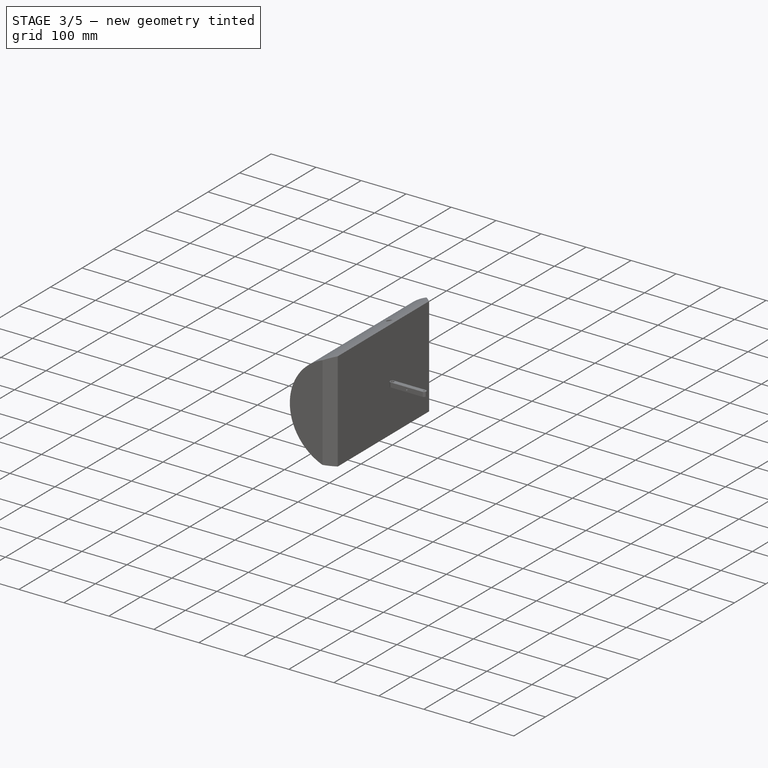
[diagram: stage 3 of 5 — iso view after this stage's code; geometry added in this stage tinted green]
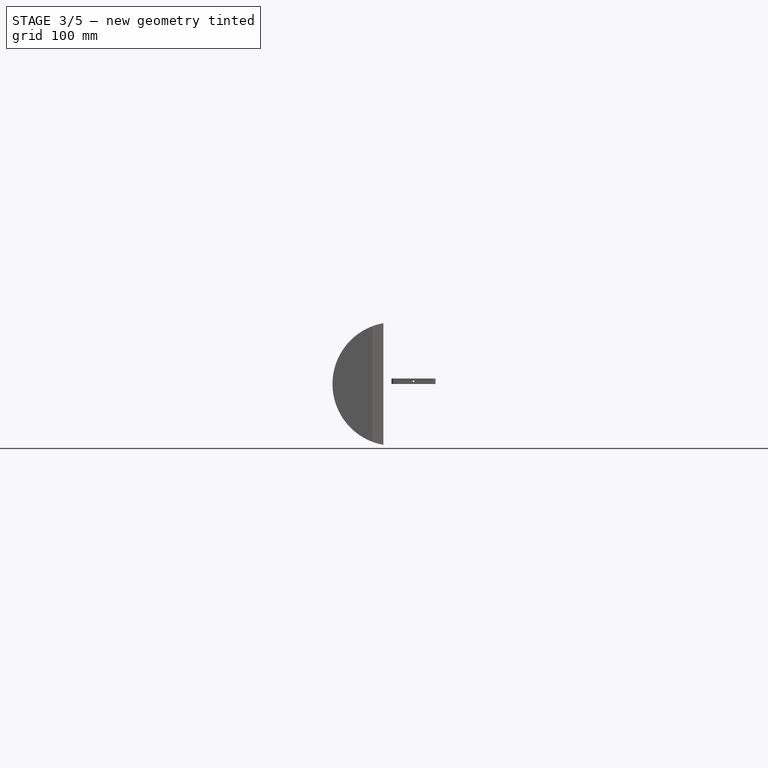
[diagram: stage 3 of 5 — front view after this stage's code; geometry added in this stage tinted green]
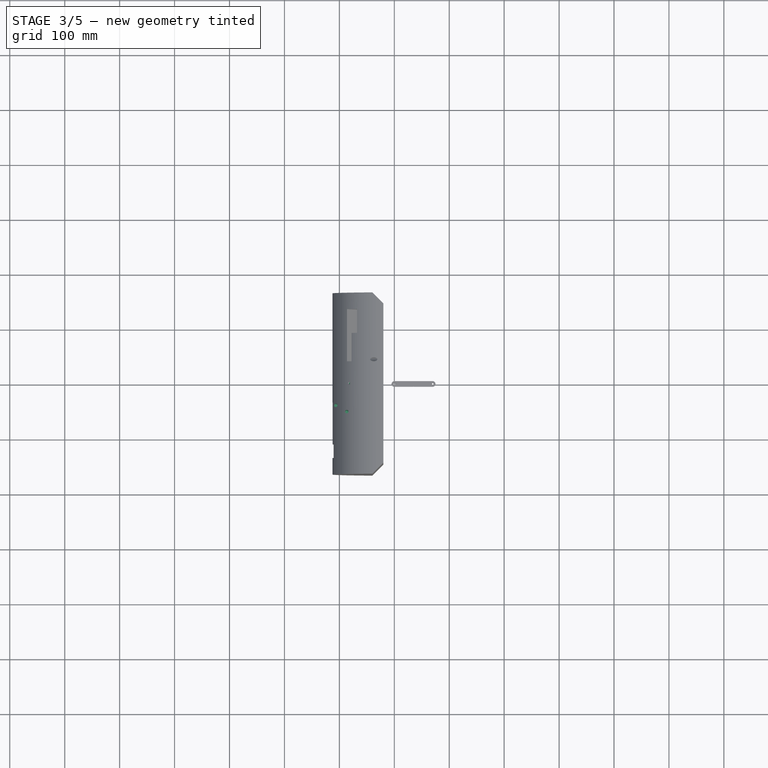
[diagram: stage 3 of 5 — top view after this stage's code; geometry added in this stage tinted green]
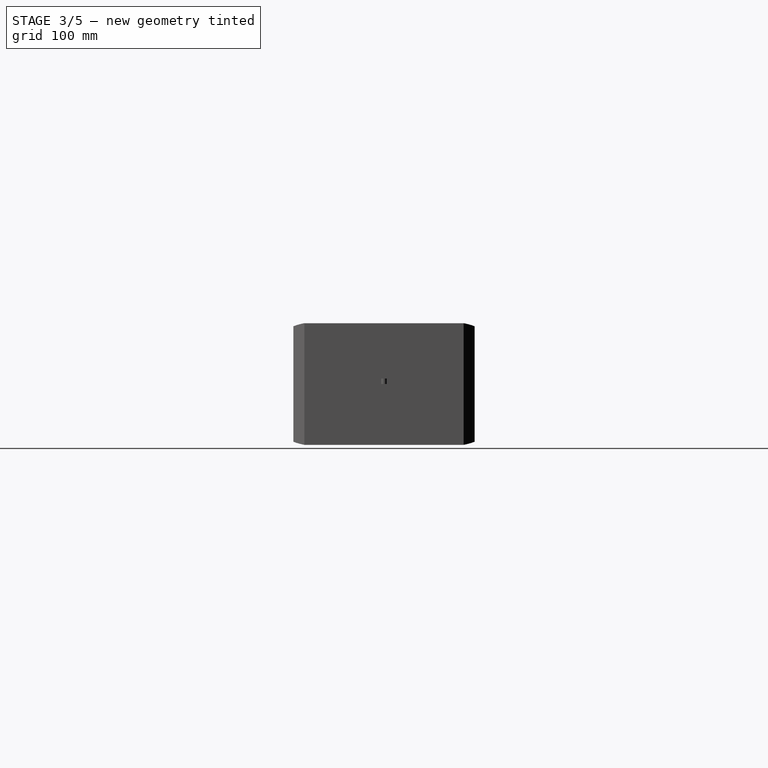
[diagram: stage 3 of 5 — right view after this stage's code; geometry added in this stage tinted green]
FEATURE [Sketcher::SketchObject] Sketch006
  ArcFitTolerance = 1e-06
  AttachmentOffset = pos=(0,0,100) rot=(0,0,1;0rad)
  AttachmentSupport = -> [Sketch004]
  ExternalBSplineMaxDegree = 5
  ExternalBSplineTolerance = 0.0001
  ExternalGeometry = -> [Sketch004]
  FullyConstrained = true
  InternalTolerance = 1e-06
  InvalidShape = false
  MakeInternals = true
  MapMode = 5
  Placement = pos=(0,0,100) rot=(0,0,1;0rad)
  Support = -> [Sketch004]
  TreeRank = 28
  ValidateShape = true
  sketch-geometry (2):
    g0: Circle CenterX=-106.49 CenterY=-39.5962 CenterZ=0 NormalX=0 NormalY=0 NormalZ=1 AngleXU=0 Radius=1.5
    g1: Circle CenterX=-86.4901 CenterY=-51.5962 CenterZ=0 NormalX=0 NormalY=0 NormalZ=1 AngleXU=0 Radius=1.5
  constraints (4):
    c: Coincident(g0,g-3)
    c: Coincident(g1,g-4)
    c: Equal(g1,g0)
    c: Diameter(g0) = 3
FEATURE [PartDesign::Hole] Hole001
  AddSubType = 1
  BaseFeature = -> Pocket003
  ClaimChildren = false
  CustomThreadClearance = 0
  Depth = 112
  DepthType = 0
  Diameter = 3.2
  DrillForDepth = false
  DrillPoint = 0
  DrillPointAngle = 118
  Fit = 0
  FitJoin = 0
  HoleCutCountersinkAngle = 90
  HoleCutCustomValues = false
  HoleCutDepth = 91.5
  HoleCutDiameter = 6.1
  HoleCutType = 1
  InnerFit = 0
  InnerFitJoin = 0
  InvalidShape = false
  Linearize = true
  ModelThread = false
  NewSolid = false
  Profile = -> Sketch006
  Refine = true
  Suppress = false
  Tapered = false
  TaperedAngle = 90
  ThreadClass = 0
  ThreadDepth = 112
  ThreadDepthType = 0
  ThreadDirection = 0
  ThreadFit = 1
  ThreadSize = 9
  ThreadType = 1
  Threaded = false
  TreeRank = 29
  UseCustomThreadClearance = false
  ValidateShape = true
  _ProfileBasedVersion = 1
FEATURE [Part::SubShapeBinder] Import  label="Import(Hole001)"
  BindCopyOnChange = 0
  BindMode = 0
  ClaimChildren = false
  Context = -> Body003 [Import.]
  EdgeTolerance = 1e-06
  FillStyle = 0
  Fuse = false
  InvalidShape = false
  MakeFace = false
  MergeEdges = true
  OffsetFill = false
  OffsetIntersection = false
  OffsetJoinType = 0
  OffsetOpenResult = false
  Outline = false
  PartialLoad = false
  Relative = true
  SplitEdges = false
  Support = -> [Body[Hole001.]]
  TightBound = false
  TreeRank = 81
  ValidateShape = true
  _Version = 8
FEATURE [PartDesign::Plane] DatumPlane
  AttachmentSupport = -> [Import]
  InvalidShape = false
  Length = 104.532
  MapMode = 13
  MinimumLength = 10
  MinimumWidth = 10
  Placement = pos=(-112.34,-84.5321,2) rot=(0.57735,-0.57735,-0.57735;2.0944rad)
  ResizeMode = 0
  Support = -> [Import]
  TreeRank = 80
  ValidateShape = true
  Width = 10
FEATURE [PartDesign::Body] Body003  label="OmniWheel"
  AutoGroupSolids = false
  ClaimAllChildren = false
  ExportMode = 0
  Group = -> [Sketch009,Pad003,Sketch010,Pocket004,PolarPattern,DatumLine,Sketch011,Pad004,Pocket005,Chamfer002,Revolution,Chamfer001,PolarPattern001,DatumPlane,Import]
  InvalidShape = false
  Origin = -> Origin003
  Tip = -> Chamfer002
  TreeRank = 97
  ValidateShape = true
  _ExportChildren = -> [Pad003,Pocket004,PolarPattern,DatumLine,Pad004,Pocket005,Chamfer002,Revolution,Chamfer001,PolarPattern001,DatumPlane,Import]
  _GroupVersion = 1
FEATURE [Sketcher::SketchObject] Sketch012
  ArcFitTolerance = 1e-06
  AttachmentOffset = pos=(0,0,-200) rot=(0,0,1;0rad)
  AttachmentSupport = -> [YZ_Plane]
  ExternalBSplineMaxDegree = 5
  ExternalBSplineTolerance = 0.0001
  ExternalGeometry = -> [Hole001]
  FullyConstrained = true
  InternalTolerance = 1e-06
  InvalidShape = false
  MakeInternals = true
  MapMode = 5
  Placement = pos=(-200,4.44e-14,-4.44e-14) rot=(0.57735,0.57735,0.57735;2.0944rad)
  Support = -> [YZ_Plane]
  TreeRank = 82
  ValidateShape = true
  sketch-geometry (1):
    g0: Circle CenterX=0 CenterY=0 CenterZ=0 NormalX=0 NormalY=0 NormalZ=1 AngleXU=0 Radius=1.5
  constraints (2):
    c: Coincident(g0,g-1)
    c: Diameter(g0) = 3
FEATURE [PartDesign::Pocket] Pocket006
  AddSubType = 1
  AutoTaperInnerAngle = true
  BaseFeature = -> Hole001
  CheckUpToFaceLimits = false
  ClaimChildren = false
  Fit = 0
  FitJoin = 0
  InnerFit = 0
  InnerFitJoin = 0
  InvalidShape = false
  Length = 0
  Length2 = 100
  Linearize = true
  NewSolid = false
  Offset = 12
  Profile = -> Sketch012
  Refine = true
  Reversed = true
  Suppress = false
  TaperInnerAngle = 0
  TaperInnerAngleRev = 0
  TreeRank = 83
  Type = 3
  UpToFace = -> Hole001 [Face1]
  ValidateShape = true
  _ProfileBasedVersion = 1
  _Version = 1
FEATURE [PartDesign::Chamfer] Chamfer003
  AddSubType = 0
  Angle = 45
  Base = -> Pocket006 [Edge19]
  BaseFeature = -> Pocket006
  ChamferType = 0
  FlipDirection = false
  InvalidShape = false
  NewSolid = false
  Refine = true
  Size = 1
  Size2 = 1
  SupportTransform = false
  Suppress = false
  TreeRank = 84
  ValidateShape = true
FEATURE [PartDesign::PolarPattern] PolarPattern002
  AddSubType = 0
  Angle = 43
  Axis = -> Y_Axis
  BaseFeature = -> Chamfer003
  CopyShape = false
  InvalidShape = false
  NewSolid = false
  Occurrences = 2
  OriginalSubs = -> [Chamfer003,Pocket006]
  Originals = -> [Chamfer003,Pocket006]
  ParallelTransform = true
  Refine = true
  SubTransform = true
  Suppress = false
  TreeRank = 85
  ValidateShape = true
  _Version = 3
FEATURE [PartDesign::Mirrored] Mirrored001
  AddSubType = 0
  BaseFeature = -> PolarPattern002
  CopyShape = false
  InvalidShape = false
  MirrorPlane = -> XY_Plane
  NewSolid = false
  ParallelTransform = true
  Refine = true
  SubTransform = true
  Suppress = false
  TreeRank = 86
  ValidateShape = true
  _Version = 3
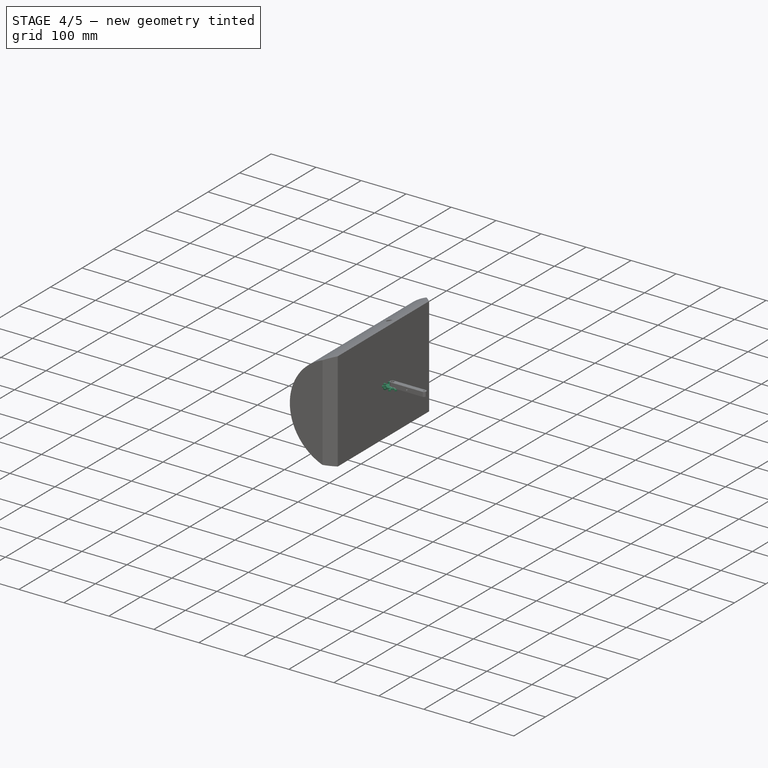
[diagram: stage 4 of 5 — iso view after this stage's code; geometry added in this stage tinted green]
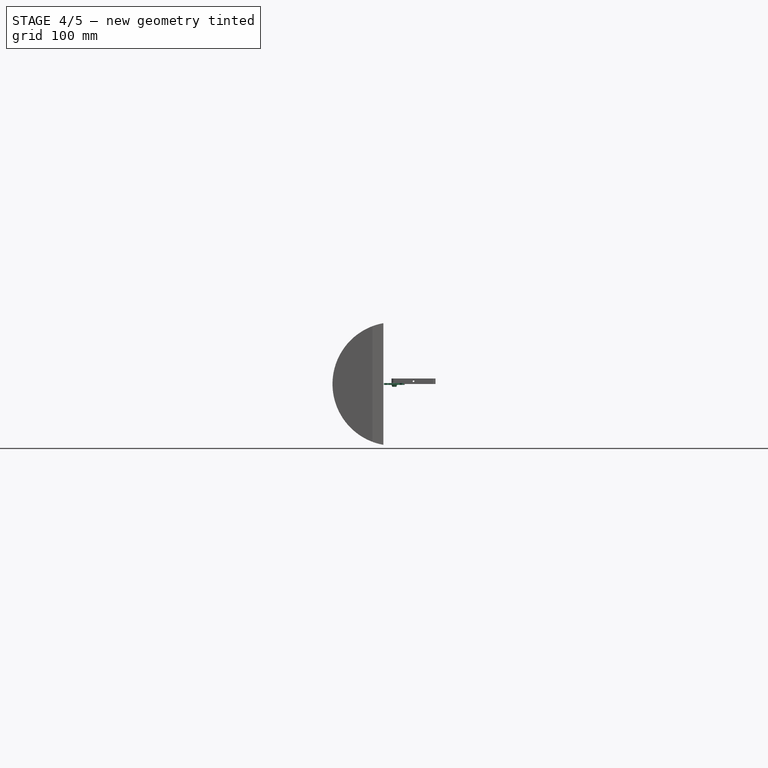
[diagram: stage 4 of 5 — front view after this stage's code; geometry added in this stage tinted green]
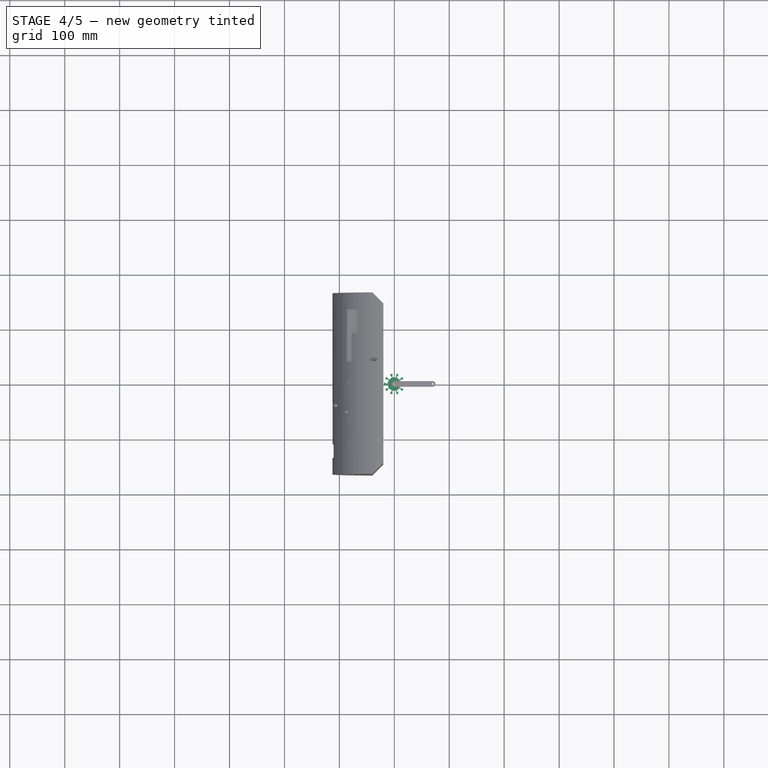
[diagram: stage 4 of 5 — top view after this stage's code; geometry added in this stage tinted green]
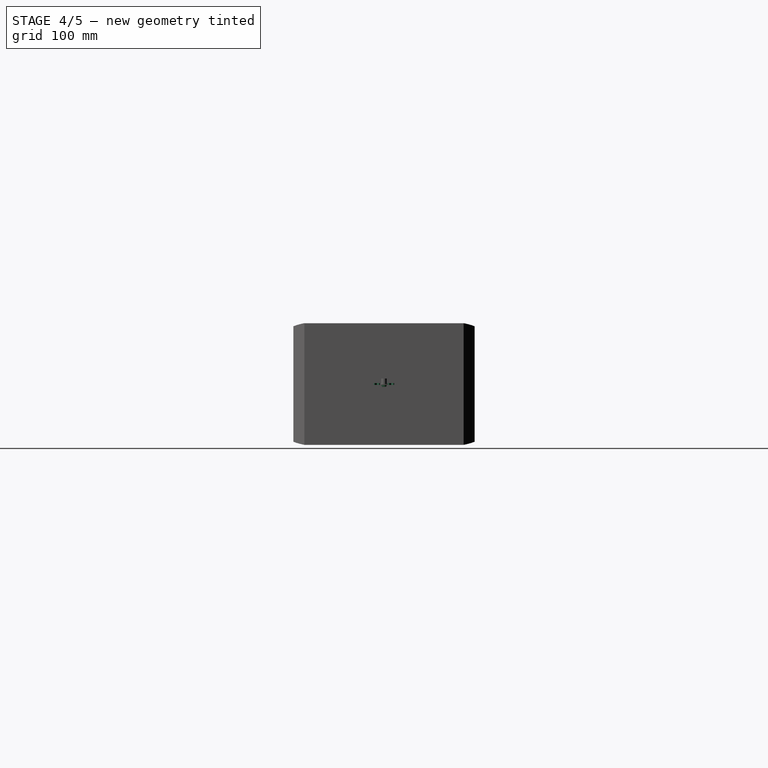
[diagram: stage 4 of 5 — right view after this stage's code; geometry added in this stage tinted green]
FEATURE [Sketcher::SketchObject] Sketch009
  ArcFitTolerance = 1e-06
  AttachmentSupport = -> [XY_Plane003]
  ExternalBSplineMaxDegree = 5
  ExternalBSplineTolerance = 0.0001
  FullyConstrained = true
  InternalTolerance = 1e-06
  InvalidShape = false
  MakeInternals = true
  MapMode = 5
  Support = -> [XY_Plane003]
  TreeRank = 65
  ValidateShape = true
  sketch-geometry (2):
    g0: Circle CenterX=0 CenterY=0 CenterZ=0 NormalX=0 NormalY=0 NormalZ=1 AngleXU=0 Radius=19
    g1: Circle CenterX=0 CenterY=0 CenterZ=0 NormalX=0 NormalY=0 NormalZ=1 AngleXU=0 Radius=2.5
  constraints (4):
    c: Diameter(g0) = 38
    c: Coincident(g0,g-1)
    c: Coincident(g1,g0)
    c: Diameter(g1) = 5
FEATURE [PartDesign::Pad] Pad003
  AddSubType = 0
  AlongSketchNormal = false
  AutoTaperInnerAngle = true
  CheckUpToFaceLimits = true
  ClaimChildren = false
  Direction = (0,0,1)
  Fit = 0
  FitJoin = 0
  InnerFit = 0
  InnerFitJoin = 0
  InvalidShape = false
  Length = 3
  Length2 = 100
  Linearize = true
  Midplane = true
  NewSolid = false
  Profile = -> Sketch009
  Refine = true
  Suppress = false
  TaperInnerAngle = 0
  TaperInnerAngleRev = 0
  TreeRank = 66
  Type = 0
  ValidateShape = true
  _ProfileBasedVersion = 1
FEATURE [Sketcher::SketchObject] Sketch010
  ArcFitTolerance = 1e-06
  AttachmentSupport = -> [XY_Plane003]
  ExternalBSplineMaxDegree = 5
  ExternalBSplineTolerance = 0.0001
  FullyConstrained = true
  InternalTolerance = 1e-06
  InvalidShape = false
  MakeInternals = true
  MapMode = 5
  Support = -> [XY_Plane003]
  TreeRank = 67
  ValidateShape = true
  sketch-geometry (4):
    g0: LineSegment StartX=3.5 StartY=12 StartZ=0 EndX=-3.5 EndY=12 EndZ=0
    g1: LineSegment StartX=-3.5 StartY=12 StartZ=0 EndX=-3.5 EndY=22 EndZ=0
    g2: LineSegment StartX=-3.5 StartY=22 StartZ=0 EndX=3.5 EndY=22 EndZ=0
    g3: LineSegment StartX=3.5 StartY=22 StartZ=0 EndX=3.5 EndY=12 EndZ=0
  constraints (11):
    c: Coincident(g0,g1)
    c: Coincident(g1,g2)
    c: Coincident(g2,g3)
    c: Coincident(g3,g0)
    c: Horizontal(g2)
    c: Vertical(g1)
    c: Vertical(g3)
    c: Distance(g0) = 7
    c: Symmetric(g0,g0,g-2)
    c: Distance(g3) = 10
    c: DistanceY(g0) = 12
FEATURE [PartDesign::Pocket] Pocket004
  AddSubType = 1
  AutoTaperInnerAngle = true
  BaseFeature = -> Pad003
  CheckUpToFaceLimits = true
  ClaimChildren = false
  Fit = 0
  FitJoin = 0
  InnerFit = 0
  InnerFitJoin = 0
  InvalidShape = false
  Length = 5
  Length2 = 100
  Linearize = true
  Midplane = true
  NewSolid = false
  Profile = -> Sketch010
  Refine = true
  Suppress = false
  TaperInnerAngle = 0
  TaperInnerAngleRev = 0
  TreeRank = 68
  Type = 1
  ValidateShape = true
  _ProfileBasedVersion = 1
  _Version = 1
FEATURE [PartDesign::PolarPattern] PolarPattern
  AddSubType = 0
  Angle = 360
  Axis = -> Sketch010 [N_Axis]
  BaseFeature = -> Pocket004
  CopyShape = false
  InvalidShape = false
  NewSolid = false
  Occurrences = 10
  OriginalSubs = -> [Pocket004]
  Originals = -> [Pocket004]
  ParallelTransform = true
  Refine = true
  SubTransform = true
  Suppress = false
  TreeRank = 69
  ValidateShape = true
  _Version = 3
FEATURE [PartDesign::Pad] Pad004
  AddSubType = 0
  AlongSketchNormal = false
  AutoTaperInnerAngle = true
  BaseFeature = -> PolarPattern
  CheckUpToFaceLimits = true
  ClaimChildren = false
  Direction = (0,0,1)
  Fit = 2
  FitJoin = 0
  InnerFit = 0
  InnerFitJoin = 0
  InvalidShape = false
  Length = 10
  Length2 = 100
  Linearize = true
  Midplane = true
  NewSolid = false
  Profile = -> Sketch009 [InternalFace2]
  Refine = true
  Suppress = false
  TaperInnerAngle = 0
  TaperInnerAngleRev = 0
  TreeRank = 75
  Type = 0
  ValidateShape = true
  _ProfileBasedVersion = 1
FEATURE [PartDesign::Pocket] Pocket005
  AddSubType = 1
  AutoTaperInnerAngle = true
  BaseFeature = -> Pad004
  CheckUpToFaceLimits = true
  ClaimChildren = false
  Fit = 0
  FitJoin = 0
  InnerFit = 0
  InnerFitJoin = 0
  InvalidShape = false
  Length = 5
  Length2 = 100
  Linearize = true
  Midplane = true
  NewSolid = false
  Profile = -> Sketch009 [InternalFace2]
  Refine = true
  Suppress = false
  TaperInnerAngle = 0
  TaperInnerAngleRev = 0
  TreeRank = 76
  Type = 1
  ValidateShape = true
  _ProfileBasedVersion = 1
  _Version = 1
FEATURE [PartDesign::Chamfer] Chamfer002
  AddSubType = 0
  Angle = 45
  Base = -> Pocket005 [Edge129,Edge126,Edge42,Edge124]
  BaseFeature = -> Pocket005
  ChamferType = 0
  FlipDirection = false
  InvalidShape = false
  NewSolid = false
  Refine = true
  Size = 1
  Size2 = 1
  SupportTransform = false
  Suppress = false
  TreeRank = 77
  ValidateShape = true
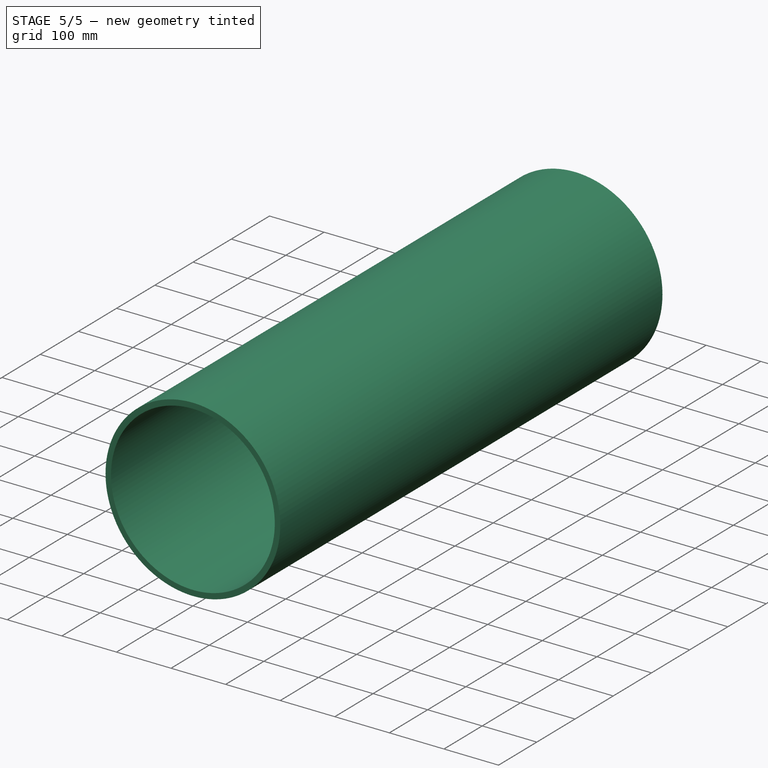
[diagram: stage 5 of 5 — iso view after this stage's code; geometry added in this stage tinted green]
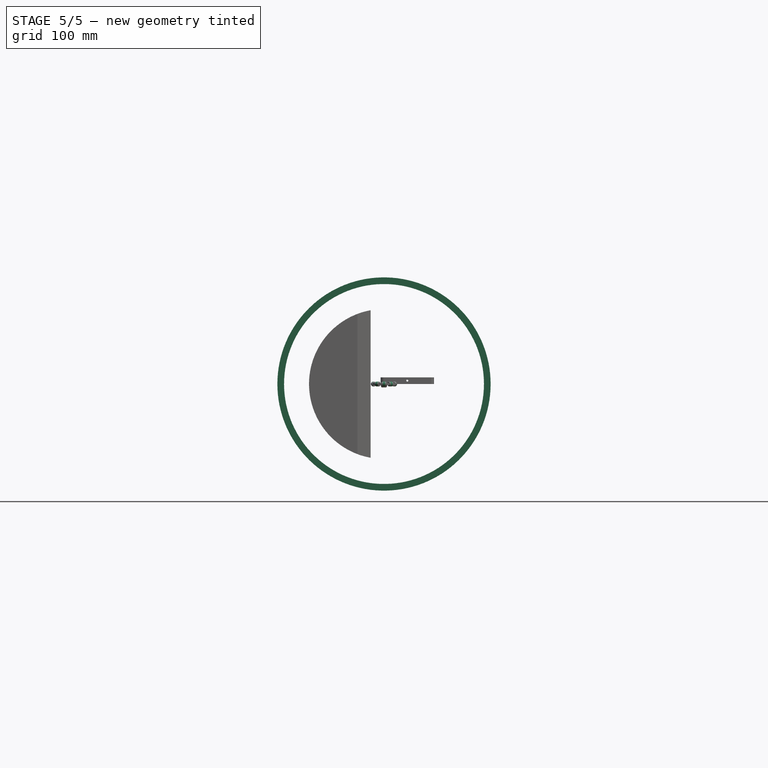
[diagram: stage 5 of 5 — front view after this stage's code; geometry added in this stage tinted green]
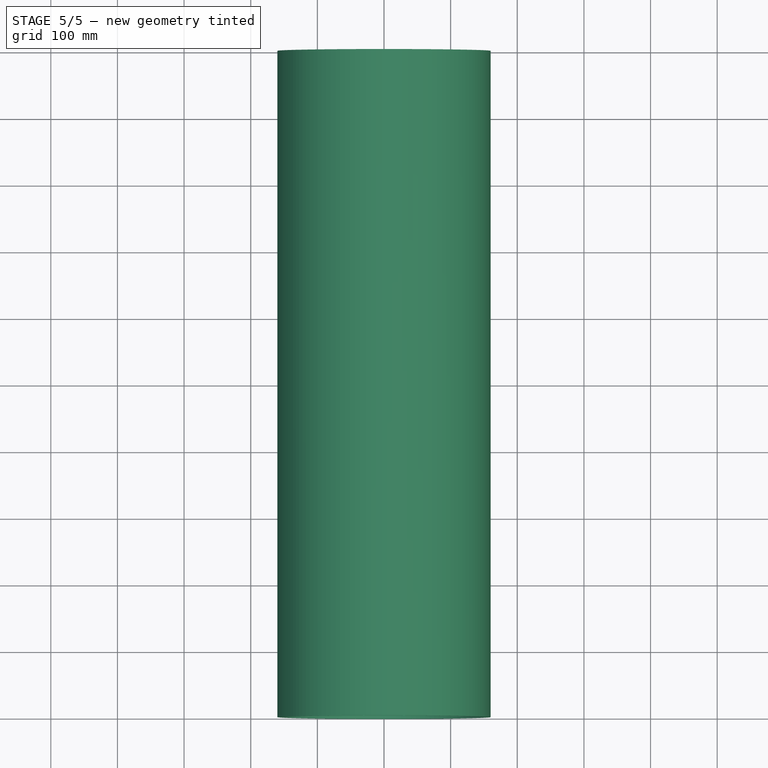
[diagram: stage 5 of 5 — top view after this stage's code; geometry added in this stage tinted green]
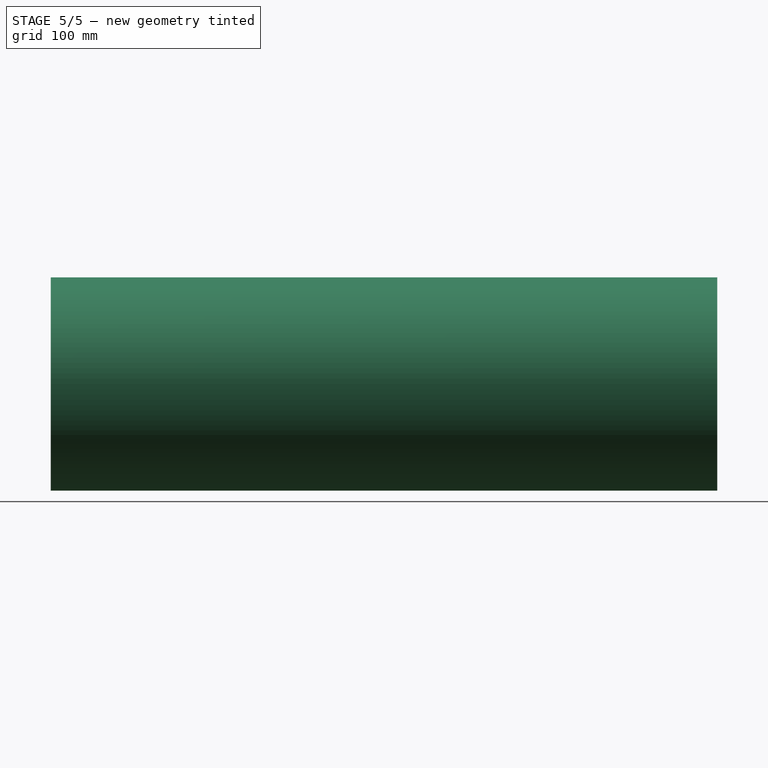
[diagram: stage 5 of 5 — right view after this stage's code; geometry added in this stage tinted green]
FEATURE [Sketcher::SketchObject] Sketch007
  ArcFitTolerance = 1e-06
  AttachmentSupport = -> [XZ_Plane001]
  ExternalBSplineMaxDegree = 5
  ExternalBSplineTolerance = 0.0001
  FullyConstrained = true
  InternalTolerance = 1e-06
  InvalidShape = false
  MakeInternals = true
  MapMode = 5
  Placement = pos=(0,0,0) rot=(1,0,0;1.5708rad)
  Support = -> [XZ_Plane001]
  TreeRank = 40
  ValidateShape = true
  expr: Constraints[1] = <<V>>.d_pipe
  sketch-geometry (1):
    g0: Circle CenterX=0 CenterY=0 CenterZ=0 NormalX=0 NormalY=0 NormalZ=1 AngleXU=0 Radius=150
  constraints (2):
    c: Coincident(g0,g-1)
    c: Diameter(g0) = 300
FEATURE [PartDesign::Pad] Pad001
  AddSubType = 0
  AlongSketchNormal = false
  AutoTaperInnerAngle = true
  CheckUpToFaceLimits = true
  ClaimChildren = false
  Direction = (0,-1,2e-16)
  Fit = 0
  FitJoin = 0
  InnerFit = 0
  InnerFitJoin = 0
  InvalidShape = false
  Length = 1000
  Length2 = 100
  Linearize = true
  Midplane = true
  NewSolid = false
  Profile = -> Sketch007
  Refine = true
  Suppress = false
  TaperInnerAngle = 0
  TaperInnerAngleRev = 0
  TreeRank = 41
  Type = 0
  ValidateShape = true
  _ProfileBasedVersion = 1
FEATURE [PartDesign::Thickness] Thickness
  AddSubType = 0
  Base = -> Pad001 [Face3,Face2]
  BaseFeature = -> Pad001
  Intersection = false
  InvalidShape = false
  Join = 0
  Mode = 0
  NewSolid = false
  Refine = true
  SupportTransform = false
  Suppress = false
  TreeRank = 42
  ValidateShape = true
  Value = 10
FEATURE [PartDesign::Line] DatumLine
  AttacherType = Attacher::AttachEngineLine
  AttachmentOffset = pos=(1,0,0) rot=(0,0,1;0rad)
  AttachmentSupport = -> [PolarPattern]
  InvalidShape = false
  Length = 10
  MapMode = 42
  MinimumLength = 10
  Placement = pos=(0,16.3374,0) rot=(0.57735,0.57735,0.57735;2.0944rad)
  ResizeMode = 0
  Support = -> [PolarPattern]
  TreeRank = 70
  ValidateShape = true
FEATURE [Sketcher::SketchObject] Sketch011
  ArcFitTolerance = 1e-06
  AttachmentSupport = -> [XY_Plane003]
  ExternalBSplineMaxDegree = 5
  ExternalBSplineTolerance = 0.0001
  ExternalGeometry = -> [DatumLine]
  FullyConstrained = true
  InternalTolerance = 1e-06
  InvalidShape = false
  MakeInternals = true
  MapMode = 5
  Support = -> [XY_Plane003]
  TreeRank = 71
  ValidateShape = true
  sketch-geometry (4):
    g0: ArcOfCircle CenterX=0 CenterY=0 CenterZ=0 NormalX=0 NormalY=0 NormalZ=1 AngleXU=0 Radius=20 StartAngle=1.39743 EndAngle=1.74416
    g1: LineSegment StartX=-3.45 StartY=16.3374 StartZ=0 EndX=3.45 EndY=16.3374 EndZ=0
    g2: LineSegment StartX=3.45 StartY=16.3374 StartZ=0 EndX=3.45 EndY=19.7002 EndZ=0
    g3: LineSegment StartX=-3.45 StartY=19.7002 StartZ=0 EndX=-3.45 EndY=16.3374 EndZ=0
  constraints (11):
    c: Coincident(g1,g2)
    c: Coincident(g3,g1)
    c: Vertical(g2)
    c: Vertical(g3)
    c: PointOnObject(g1,g-3)
    c: Coincident(g0,g2)
    c: Coincident(g0,g3)
    c: Symmetric(g1,g1,g-2)
    c: Distance(g1) = 6.9
    c: Coincident(g-1,g0)
    c: Radius(g0) = 20
FEATURE [PartDesign::Revolution] Revolution
  AddSubType = 0
  Angle = 360
  Axis = (1,0,0)
  Base = (0,16.3374,0)
  ClaimChildren = false
  Fit = 0
  FitJoin = 0
  InnerFit = 0
  InnerFitJoin = 0
  InvalidShape = false
  Linearize = true
  NewSolid = true
  Profile = -> Sketch011
  ReferenceAxis = -> DatumLine
  Refine = true
  Reversed = true
  Suppress = false
  TreeRank = 72
  ValidateShape = true
  _ProfileBasedVersion = 1
FEATURE [PartDesign::Chamfer] Chamfer001
  AddSubType = 0
  Angle = 45
  Base = -> Revolution [Edge3,Edge1]
  BaseFeature = -> Revolution
  ChamferType = 0
  FlipDirection = false
  InvalidShape = false
  NewSolid = false
  Refine = true
  Size = 0.5
  Size2 = 1
  SupportTransform = false
  Suppress = false
  TreeRank = 74
  ValidateShape = true
FEATURE [PartDesign::PolarPattern] PolarPattern001
  AddSubType = 0
  Angle = 360
  Axis = -> Z_Axis003
  BaseFeature = -> Chamfer001
  CopyShape = false
  InvalidShape = false
  NewSolid = false
  Occurrences = 10
  OriginalSubs = -> [Revolution,Chamfer001]
  Originals = -> [Revolution,Chamfer001]
  ParallelTransform = true
  Refine = true
  SubTransform = true
  Suppress = false
  TreeRank = 73
  ValidateShape = true
  _Version = 3
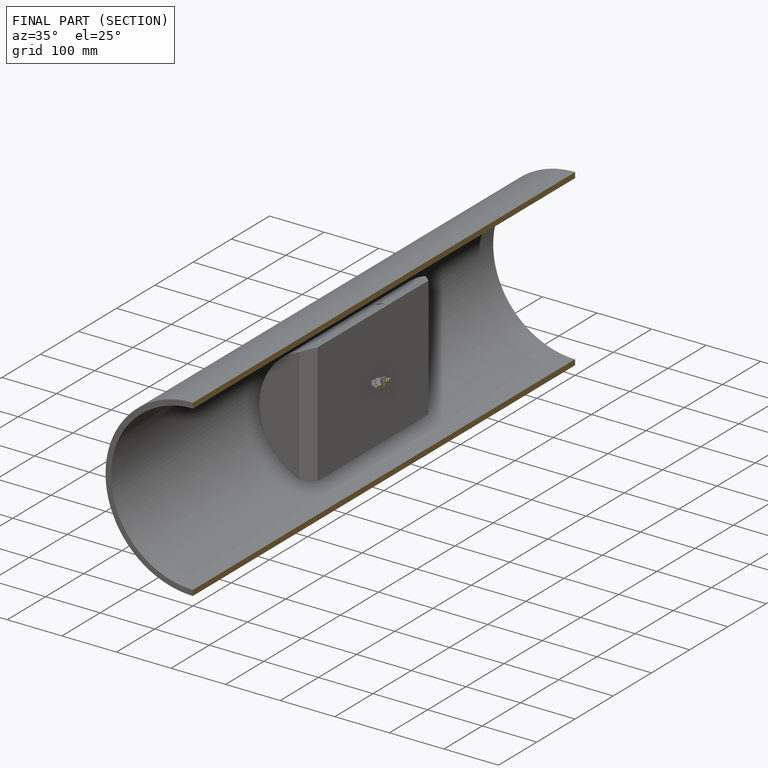
[diagram: finished part — half-section view (interior)]
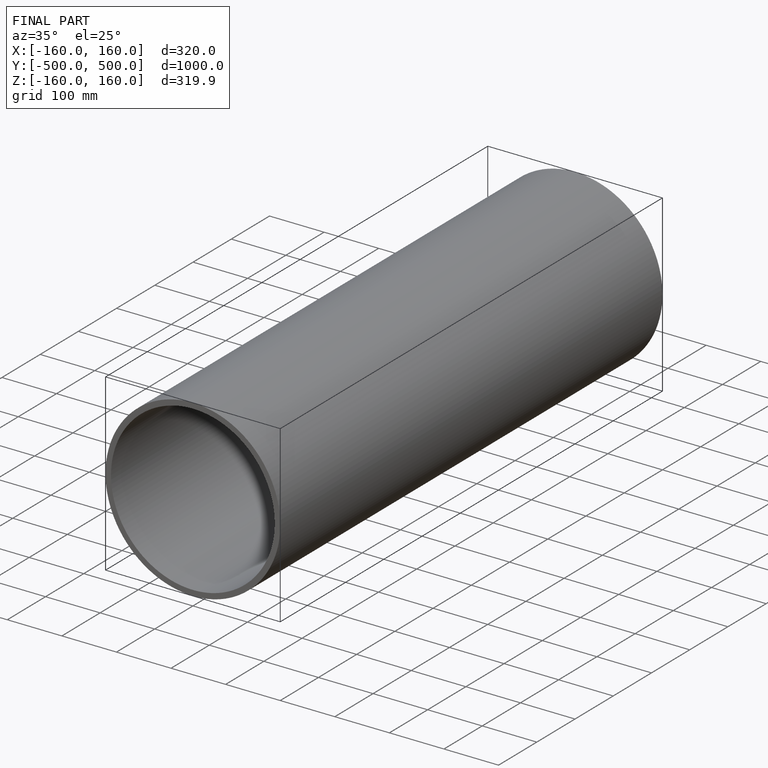
[diagram: finished part — iso view with bounding-box wireframe]
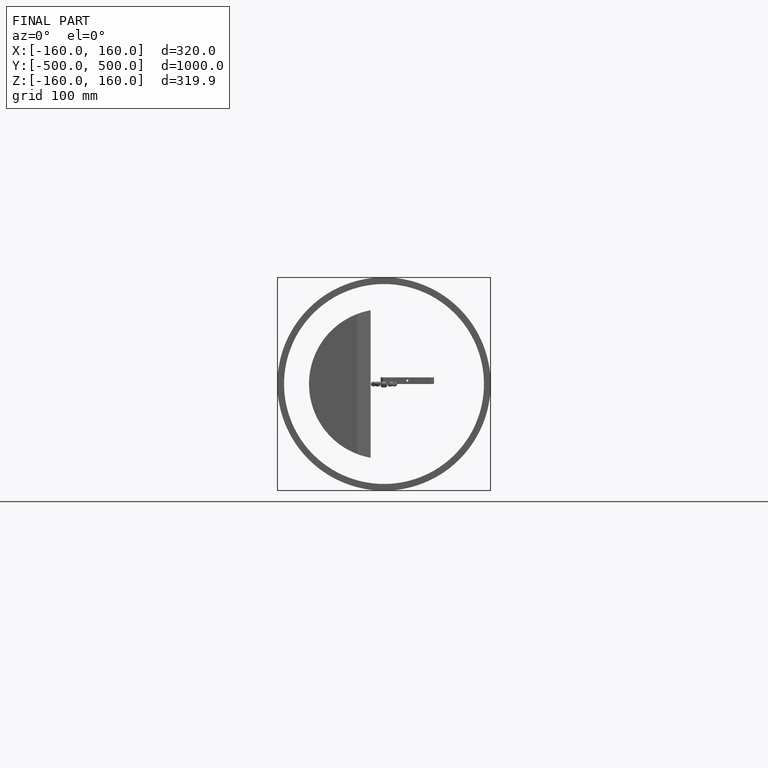
[diagram: finished part — front view with bounding-box wireframe]
